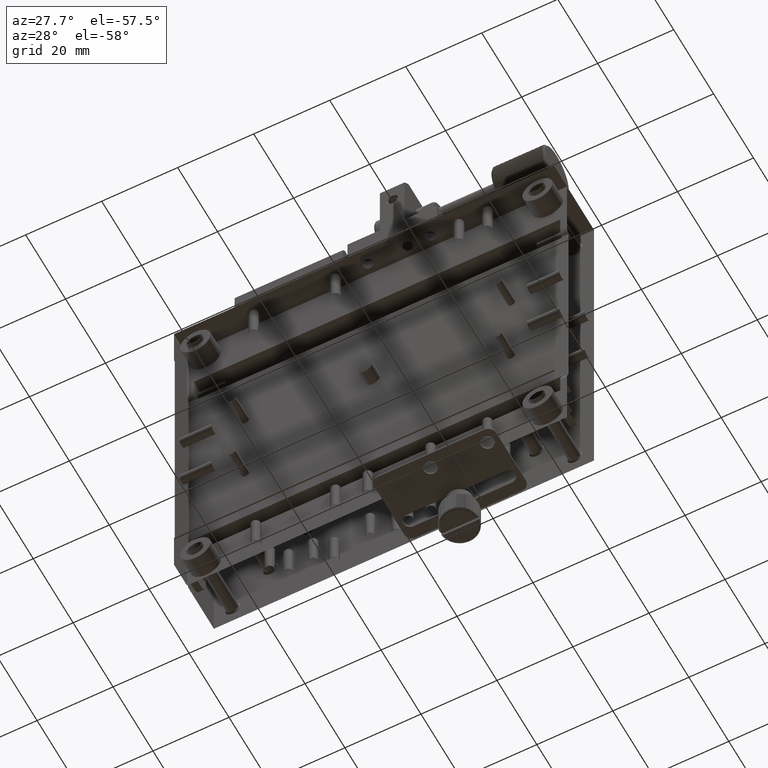
[diagram: clean part render]
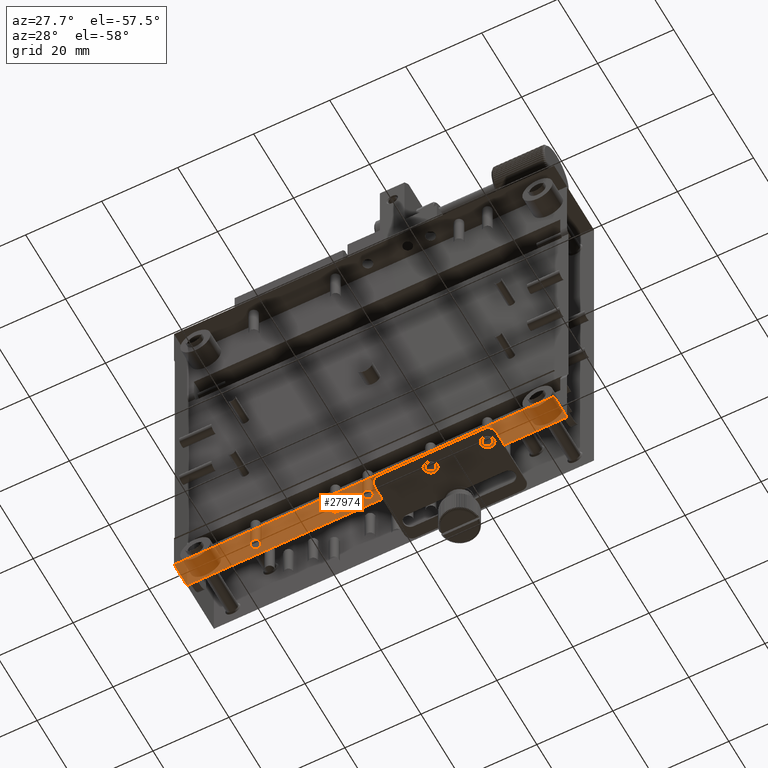
[diagram: same view with one face highlighted and labeled with its STEP entity id]
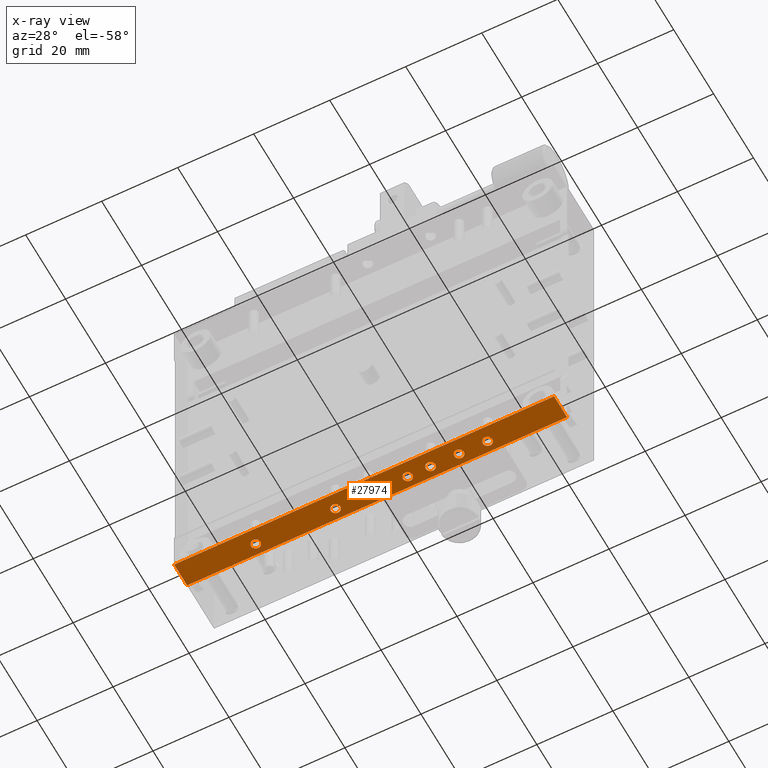
[diagram: x-ray of the same camera — body ghosted, the highlighted face saturated]
A machine part, auxiliary view. The second image highlights one B-rep face of the part: STEP entity #27974.
The next image is the same camera in x-ray: the body ghosted, the highlighted face saturated — about 0% of this face is hidden behind the body in this view.
In plain terms, the highlighted planar face has unit normal (0, 0, 1).
Its self-contained STEP definition (entity closure, byte-faithful):
#18 = CARTESIAN_POINT ( 'NONE',  ( 23.80110581196590758, -12.13680004577959437, -49.99998750000001024 ) ) ;
#25 = CARTESIAN_POINT ( 'NONE',  ( 37.13044967000821828, -9.783873906736351600, -49.99998750000001735 ) ) ;
#108 = B_SPLINE_CURVE_WITH_KNOTS ( 'NONE', 3,
 ( #2671, #6938, #24360, #11356, #8785, #17572, #15727, #554, #9215, #26198, #26620, #2815, #15173, #692, #17855, #6789, #22236, #9351, #15449, #23800, #13042, #17431, #26056, #5082, #1239, #10056, #7355, #5348, #18129, #27179, #3517, #7215, #14034, #22648 ),
 .UNSPECIFIED., .F., .F.,
 ( 4, 1, 1, 2, 2, 2, 1, 1, 2, 2, 2, 1, 1, 2, 2, 2, 1, 1, 2, 2, 4 ),
 ( 0.000000000000000000, 0.06249999999999966693, 0.09375000000000019429, 0.1093749999999994033, 0.1249999999999986122, 0.2499999999999918399, 0.3124999999999880096, 0.3437499999999850120, 0.3593749999999846789, 0.3749999999999842903, 0.4999999999999727995, 0.5624999999999684697, 0.5937499999999663602, 0.6093749999999665823, 0.6249999999999668043, 0.7499999999999737987, 0.8124999999999785727, 0.8437499999999812372, 0.8593749999999833467, 0.8749999999999854561, 1.000000000000000000 ),
 .UNSPECIFIED. ) ;
#138 = DIRECTION ( 'NONE',  ( 1.000000000000000000, 0.000000000000000000, -0.000000000000000000 ) ) ;
#169 = CARTESIAN_POINT ( 'NONE',  ( 35.61189463976847236, -10.60523917224148605, -49.99998750000001024 ) ) ;
#189 = CARTESIAN_POINT ( 'NONE',  ( 45.06313994290746905, -9.985328543234766485, -49.99998750000001024 ) ) ;
#196 = B_SPLINE_CURVE_WITH_KNOTS ( 'NONE', 3,
 ( #8909, #2372, #19971, #6632, #11064, #19691, #10773, #19829, #260, #17557, #26183, #9058, #26331, #6925, #15581, #24214, #23022, #25012, #16636, #3605, #12264, #5859, #22748, #10281, #1470, #12403, #20902, #14535, #3744, #5585, #10147, #16366, #18355, #4930 ),
 .UNSPECIFIED., .F., .F.,
 ( 4, 1, 1, 2, 2, 2, 1, 1, 2, 2, 2, 1, 1, 2, 2, 2, 1, 1, 2, 2, 4 ),
 ( 0.000000000000000000, 0.06249999999999918121, 0.09374999999999945877, 0.1093750000000006523, 0.1250000000000018319, 0.2500000000000047740, 0.3125000000000066613, 0.3437500000000069389, 0.3593750000000067724, 0.3750000000000066058, 0.5000000000000098810, 0.5625000000000115463, 0.5937500000000123235, 0.6093750000000113243, 0.6250000000000104361, 0.7500000000000081046, 0.8125000000000056621, 0.8437500000000031086, 0.8593750000000031086, 0.8750000000000029976, 1.000000000000000000 ),
 .UNSPECIFIED. ) ;
#206 = CARTESIAN_POINT ( 'NONE',  ( -17.46094123574658852, -11.99657140997424420, -49.99998749999999603 ) ) ;
#236 = CARTESIAN_POINT ( 'NONE',  ( 45.47750505977074198, -11.41399117310347222, -49.99998750000002445 ) ) ;
#260 = CARTESIAN_POINT ( 'NONE',  ( 22.29547792020217045, -10.22890938728121490, -49.99998749999999603 ) ) ;
#375 = CARTESIAN_POINT ( 'NONE',  ( 3.861002237255513947, -12.16110202753867497, -49.99998750000000314 ) ) ;
#413 = FACE_BOUND ( 'NONE', #11491, .T. ) ;
#554 = CARTESIAN_POINT ( 'NONE',  ( -17.79780262588701945, -10.37066142462020935, -49.99998750000001024 ) ) ;
#634 = CARTESIAN_POINT ( 'NONE',  ( 30.52184447902167008, -10.67844600469130434, -49.99998750000003156 ) ) ;
#692 = CARTESIAN_POINT ( 'NONE',  ( -17.19890710480779816, -9.845099907426099861, -49.99998750000002445 ) ) ;
#786 = CARTESIAN_POINT ( 'NONE',  ( 4.840079020605724480, -12.11905260172767562, -49.99998749999999603 ) ) ;
#903 = CARTESIAN_POINT ( 'NONE',  ( 37.62411385161705368, -11.93575489666580047, -49.99998750000001735 ) ) ;
#963 = EDGE_CURVE ( 'NONE', #18993, #1436, #12840, .T. ) ;
#1042 = CARTESIAN_POINT ( 'NONE',  ( 30.42920197870361676, -10.45197030957609030, -49.99998750000000314 ) ) ;
#1044 = CARTESIAN_POINT ( 'NONE',  ( 36.03905876425340438, -11.99657140997451421, -49.99998750000001024 ) ) ;
#1106 = EDGE_CURVE ( 'NONE', #26775, #19376, #9123, .T. ) ;
#1147 = CARTESIAN_POINT ( 'NONE',  ( 5.456021011267694121, -10.51237978777043480, -49.99998750000002445 ) ) ;
#1176 = CARTESIAN_POINT ( 'NONE',  ( 28.70457473639070400, -9.890830654454122239, -49.99998749999999603 ) ) ;
#1239 = CARTESIAN_POINT ( 'NONE',  ( -15.93686005709710507, -9.985328543228831677, -49.99998750000001024 ) ) ;
#1287 = CARTESIAN_POINT ( 'NONE',  ( 3.478084855541966558, -10.04614505653960954, -49.99998750000001024 ) ) ;
#1293 = VERTEX_POINT ( 'NONE', #20693 ) ;
#1323 = CARTESIAN_POINT ( 'NONE',  ( 36.72179724095674658, -12.24098362755351843, -49.99998750000000314 ) ) ;
#1432 = CARTESIAN_POINT ( 'NONE',  ( 4.630449670008154328, -9.783873906736346271, -49.99998750000000314 ) ) ;
#1436 = VERTEX_POINT ( 'NONE', #4317 ) ;
#1444 = CARTESIAN_POINT ( 'NONE',  ( 44.89762397076953704, -12.09106929875040315, -49.99998749999998893 ) ) ;
#1470 = CARTESIAN_POINT ( 'NONE',  ( 24.06313994290289671, -9.985328543228828124, -49.99998749999999603 ) ) ;
#1498 = CARTESIAN_POINT ( 'NONE',  ( 12.95970357882189639, -12.24088267470168745, -49.99998749999999603 ) ) ;
#1572 = CARTESIAN_POINT ( 'NONE',  ( 24.55109935357898365, -11.07033719248107495, -49.99998750000002445 ) ) ;
#1708 = CARTESIAN_POINT ( 'NONE',  ( 22.15524928440267516, -11.49095643499012098, -49.99998750000000314 ) ) ;
#1714 = CARTESIAN_POINT ( 'NONE',  ( 44.80110581196548480, -12.13680004577991056, -49.99998750000001735 ) ) ;
#1741 = CARTESIAN_POINT ( 'NONE',  ( 43.05109935357901918, -10.91156276072305431, -49.99998750000001735 ) ) ;
#1850 = CARTESIAN_POINT ( 'NONE',  ( 22.97174903715109195, -12.19802604646952737, -49.99998750000001024 ) ) ;
#1903 = CARTESIAN_POINT ( 'NONE',  ( 13.52549148159294923, -12.01623996683035145, -49.99998750000000314 ) ) ;
#1916 = CARTESIAN_POINT ( 'NONE',  ( 29.10480585812173970, -12.23003828780748670, -49.99998750000002445 ) ) ;
#1918 = EDGE_CURVE ( 'NONE', #4929, #4453, #8364, .T. ) ;
#1949 = ORIENTED_EDGE ( 'NONE', *, *, #1918, .T. ) ;
#1984 = CARTESIAN_POINT ( 'NONE',  ( 22.05109935357902629, -10.99094997660293593, -49.99998750000001024 ) ) ;
#2118 = CARTESIAN_POINT ( 'NONE',  ( 24.49030406738954824, -11.37666078096188471, -49.99998750000002445 ) ) ;
#2164 = CARTESIAN_POINT ( 'NONE',  ( -17.13899776274460507, -12.16110202753863412, -49.99998750000001735 ) ) ;
#2194 = CARTESIAN_POINT ( 'NONE',  ( 13.94694942275570781, -10.49094351821619675, -49.99998750000000314 ) ) ;
#2338 = CARTESIAN_POINT ( 'NONE',  ( 28.15524928440245844, -11.49095643498989716, -49.99998750000002445 ) ) ;
#2345 = CARTESIAN_POINT ( 'NONE',  ( 45.49030406738955890, -11.37666078095949551, -49.99998750000001024 ) ) ;
#2372 = CARTESIAN_POINT ( 'NONE',  ( 22.05109935357902984, -10.91156276072250897, -49.99998750000001024 ) ) ;
#2389 = CARTESIAN_POINT ( 'NONE',  ( 30.12411385161846411, -11.93575489666496203, -49.99998750000002445 ) ) ;
#2414 = CARTESIAN_POINT ( 'NONE',  ( 36.64249512833382738, -9.741017278504184418, -49.99998750000002445 ) ) ;
#2485 = CARTESIAN_POINT ( 'NONE',  ( 11.70219737411456862, -10.37066142461695684, -49.99998750000001024 ) ) ;
#2537 = EDGE_CURVE ( 'NONE', #10164, #27609, #196, .T. ) ;
#2596 = CARTESIAN_POINT ( 'NONE',  ( -16.38622613163613195, -12.21162750417076204, -49.99998750000000314 ) ) ;
#2623 = CARTESIAN_POINT ( 'NONE',  ( 12.88040146620153692, -9.740916325652346330, -49.99998750000001735 ) ) ;
#2669 = DIRECTION ( 'NONE',  ( 0.000000000000000000, 0.000000000000000000, 1.000000000000000000 ) ) ;
#2671 = CARTESIAN_POINT ( 'NONE',  ( -17.94890064642098082, -10.99094997660293593, -49.99998750000001024 ) ) ;
#2751 = CARTESIAN_POINT ( 'NONE',  ( 30.40121867572527137, -10.39442535941101298, -49.99998750000002445 ) ) ;
#2773 = CARTESIAN_POINT ( 'NONE',  ( 3.356294433516384679, -11.81396447464109478, -49.99998750000001735 ) ) ;
#2796 = ORIENTED_EDGE ( 'NONE', *, *, #15380, .T. ) ;
#2803 = EDGE_CURVE ( 'NONE', #1436, #18993, #21473, .T. ) ;
#2815 = CARTESIAN_POINT ( 'NONE',  ( -17.29542526361245436, -9.890830654455825766, -49.99998750000000314 ) ) ;
#2929 = CARTESIAN_POINT ( 'NONE',  ( 14.05109935357898365, -10.99094997660293593, -49.99998750000001024 ) ) ;
#3023 = EDGE_CURVE ( 'NONE', #27609, #10164, #7276, .T. ) ;
#3032 = CARTESIAN_POINT ( 'NONE',  ( 36.95970357882351465, -12.24088267470168923, -49.99998750000001024 ) ) ;
#3052 = CARTESIAN_POINT ( 'NONE',  ( 4.613773868363875152, -12.21162750417076559, -49.99998750000001735 ) ) ;
#3133 = CARTESIAN_POINT ( 'NONE',  ( 5.326389343806560817, -10.26655784858987097, -49.99998750000000314 ) ) ;
#3168 = CARTESIAN_POINT ( 'NONE',  ( 29.63044967000797314, -9.783873906736346271, -49.99998750000001024 ) ) ;
#3343 = VECTOR ( 'NONE', #16173, 1000.000000000000000 ) ;
#3451 = CARTESIAN_POINT ( 'NONE',  ( 37.97125140451450420, -11.43104709292669696, -49.99998750000001024 ) ) ;
#3517 = CARTESIAN_POINT ( 'NONE',  ( -15.54397898873231654, -10.51237978777034776, -49.99998750000001024 ) ) ;
#3578 = CARTESIAN_POINT ( 'NONE',  ( 43.20098003143498033, -11.58747459379693368, -49.99998750000003156 ) ) ;
#3599 = CARTESIAN_POINT ( 'NONE',  ( 35.67299672845455660, -11.52992964363005157, -49.99998750000002445 ) ) ;
#3605 = CARTESIAN_POINT ( 'NONE',  ( 23.63044967000833196, -9.783873906736349824, -49.99998750000001735 ) ) ;
#3653 = VERTEX_POINT ( 'NONE', #11613 ) ;
#3663 = CARTESIAN_POINT ( 'NONE',  ( 35.55109935357903339, -10.99094997660293593, -49.99998750000001024 ) ) ;
#3718 = CARTESIAN_POINT ( 'NONE',  ( 43.14617769589030161, -11.46952016543471409, -49.99998750000001735 ) ) ;
#3744 = CARTESIAN_POINT ( 'NONE',  ( 24.42920197870419230, -10.45197030957688789, -49.99998750000003156 ) ) ;
#3854 = CARTESIAN_POINT ( 'NONE',  ( 44.45970357882456625, -12.24088267470169100, -49.99998750000000314 ) ) ;
#3857 = EDGE_CURVE ( 'NONE', #1293, #19557, #4494, .T. ) ;
#3880 = CARTESIAN_POINT ( 'NONE',  ( 43.82255048260564934, -9.836019869179889241, -49.99998749999999603 ) ) ;
#3904 = CARTESIAN_POINT ( 'NONE',  ( 11.55109935357903339, -11.15008115286311074, -49.99998750000002445 ) ) ;
#3981 = CARTESIAN_POINT ( 'NONE',  ( 22.14617769589031582, -11.46952016543518837, -49.99998750000001735 ) ) ;
#3987 = CARTESIAN_POINT ( 'NONE',  ( 37.90121867572417358, -10.39442535940935919, -49.99998750000003156 ) ) ;
#4054 = CARTESIAN_POINT ( 'NONE',  ( 28.08035422813634696, -11.30345394851455332, -49.99998750000000314 ) ) ;
#4124 = CARTESIAN_POINT ( 'NONE',  ( 23.89762397077078049, -12.09106929874953984, -49.99998750000001024 ) ) ;
#4173 = CARTESIAN_POINT ( 'NONE',  ( -16.89519414187780910, -12.23003828780748492, -49.99998750000001735 ) ) ;
#4197 = CARTESIAN_POINT ( 'NONE',  ( 28.05109935357902629, -11.15008115286377510, -49.99998750000001735 ) ) ;
#4201 = CARTESIAN_POINT ( 'NONE',  ( 13.56313994290357172, -9.985328543229773146, -49.99998749999999603 ) ) ;
#4317 = CARTESIAN_POINT ( 'NONE',  ( 43.05109935357901918, -10.99094997660293593, -49.99998750000001024 ) ) ;
#4332 = CARTESIAN_POINT ( 'NONE',  ( 12.20457473638949253, -9.890830654454990878, -49.99998750000001735 ) ) ;
#4453 = VERTEX_POINT ( 'NONE', #27018 ) ;
#4469 = CARTESIAN_POINT ( 'NONE',  ( 11.63094730264304388, -10.55085286027981084, -49.99998750000001735 ) ) ;
#4494 = B_SPLINE_CURVE_WITH_KNOTS ( 'NONE', 3,
 ( #26153, #26445, #9174, #13422, #8743, #21910, #4469, #2485, #19796, #7033, #17671, #4332, #6745, #26016, #26297, #21629, #15408, #2623, #17388, #6598, #6895, #6470, #15264, #10746, #4201, #19379, #27999, #24042, #4618, #2194, #8607, #17247, #15553, #24185 ),
 .UNSPECIFIED., .F., .F.,
 ( 4, 1, 1, 2, 2, 2, 1, 1, 2, 2, 2, 1, 1, 2, 2, 2, 1, 1, 2, 2, 4 ),
 ( 0.000000000000000000, 0.06249999999999591993, 0.09374999999999443501, 0.1093749999999936856, 0.1249999999999929501, 0.2499999999999888978, 0.3124999999999877320, 0.3437499999999872324, 0.3593749999999875100, 0.3749999999999878431, 0.4999999999999928946, 0.5624999999999946709, 0.5937499999999950040, 0.6093749999999944489, 0.6249999999999937828, 0.7499999999999978906, 0.8124999999999994449, 0.8437500000000011102, 0.8593750000000014433, 0.8750000000000016653, 1.000000000000000000 ),
 .UNSPECIFIED. ) ;
#4501 = EDGE_LOOP ( 'NONE', ( #12811, #23852, #13181, #23106 ) ) ;
#4545 = CARTESIAN_POINT ( 'NONE',  ( 36.99739284903758829, -9.751861665398392276, -49.99998750000001735 ) ) ;
#4618 = CARTESIAN_POINT ( 'NONE',  ( 13.92920197870390808, -10.45197030957648998, -49.99998750000002445 ) ) ;
#4666 = CARTESIAN_POINT ( 'NONE',  ( 29.89762397077198841, -12.09106929874905489, -49.99998750000001024 ) ) ;
#4716 = CARTESIAN_POINT ( 'NONE',  ( 44.49739284903640169, -9.751861665398386947, -49.99998750000001024 ) ) ;
#4734 = CARTESIAN_POINT ( 'NONE',  ( -17.31918919840316207, -12.08985195606951812, -49.99998750000000314 ) ) ;
#4800 = PLANE ( 'NONE',  #7190 ) ;
#4870 = DIRECTION ( 'NONE',  ( -1.000000000000000000, 0.000000000000000000, -0.000000000000000000 ) ) ;
#4906 = CARTESIAN_POINT ( 'NONE',  ( 5.551099353578983653, -11.07033719248107317, -49.99998750000001024 ) ) ;
#4929 = VERTEX_POINT ( 'NONE', #5340 ) ;
#4930 = CARTESIAN_POINT ( 'NONE',  ( 24.55109935357898010, -10.99094997660293593, -49.99998750000001024 ) ) ;
#5043 = CARTESIAN_POINT ( 'NONE',  ( 3.680810801595931991, -12.08985195606915752, -49.99998750000001024 ) ) ;
#5082 = CARTESIAN_POINT ( 'NONE',  ( -16.07861209443547068, -9.892047997138618598, -49.99998750000000314 ) ) ;
#5129 = CARTESIAN_POINT ( 'NONE',  ( 5.063139942903570834, -9.985328543229773146, -49.99998750000001735 ) ) ;
#5136 = CARTESIAN_POINT ( 'NONE',  ( 45.52184447902165942, -10.67844600468751892, -49.99998750000001735 ) ) ;
#5139 = EDGE_LOOP ( 'NONE', ( #24108, #12125 ) ) ;
#5181 = CARTESIAN_POINT ( 'NONE',  ( 3.915460355092772904, -12.18018308340305822, -49.99998750000000314 ) ) ;
#5255 = CARTESIAN_POINT ( 'NONE',  ( 4.921387905563893383, -9.892047997138243787, -49.99998750000001735 ) ) ;
#5274 = CARTESIAN_POINT ( 'NONE',  ( 13.80109935357899964, -14.79094997660293132, -49.99998750000001024 ) ) ;
#5291 = CARTESIAN_POINT ( 'NONE',  ( 35.85629443351704992, -11.81396447464189414, -49.99998750000001735 ) ) ;
#5310 = CARTESIAN_POINT ( 'NONE',  ( 4.801105811965896031, -12.13680004577954819, -49.99998750000001735 ) ) ;
#5340 = CARTESIAN_POINT ( 'NONE',  ( 3.051099353579028950, -10.99094997660293593, -49.99998750000001024 ) ) ;
#5348 = CARTESIAN_POINT ( 'NONE',  ( -15.59878132427385644, -10.39442535941225465, -49.99998750000000314 ) ) ;
#5431 = CARTESIAN_POINT ( 'NONE',  ( 29.74119646990234500, -9.820797925667054784, -49.99998750000001024 ) ) ;
#5541 = CARTESIAN_POINT ( 'NONE',  ( 5.521844479021663865, -10.67844600469197580, -49.99998750000001735 ) ) ;
#5554 = CARTESIAN_POINT ( 'NONE',  ( 44.84007902060496775, -12.11905260172832399, -49.99998750000001735 ) ) ;
#5585 = CARTESIAN_POINT ( 'NONE',  ( 24.44694942275585703, -10.49094351821641347, -49.99998750000000314 ) ) ;
#5691 = CARTESIAN_POINT ( 'NONE',  ( 44.10480585812008769, -12.23003828780748314, -49.99998750000000314 ) ) ;
#5710 = CARTESIAN_POINT ( 'NONE',  ( 36.37809804922832768, -12.16737145667775088, -49.99998750000000314 ) ) ;
#5859 = CARTESIAN_POINT ( 'NONE',  ( 23.72410065792985989, -9.814528496528119206, -49.99998749999999603 ) ) ;
#5884 = CARTESIAN_POINT ( 'NONE',  ( 12.72179724095755660, -12.24098362755352198, -49.99998750000000314 ) ) ;
#5934 = ORIENTED_EDGE ( 'NONE', *, *, #11384, .T. ) ;
#5971 = CARTESIAN_POINT ( 'NONE',  ( 22.91546035509277246, -12.18018308340306177, -49.99998750000001735 ) ) ;
#6006 = CARTESIAN_POINT ( 'NONE',  ( 43.12469364738728927, -10.56790878010025381, -49.99998750000001735 ) ) ;
#6039 = EDGE_LOOP ( 'NONE', ( #9440, #18916 ) ) ;
#6047 = CARTESIAN_POINT ( 'NONE',  ( 28.97174903715074734, -12.19802604646952560, -49.99998750000000314 ) ) ;
#6110 = CARTESIAN_POINT ( 'NONE',  ( 23.61377386836333159, -12.21162750417076559, -49.99998750000001735 ) ) ;
#6116 = CARTESIAN_POINT ( 'NONE',  ( 37.18673835206609368, -9.801716869802824306, -49.99998750000001735 ) ) ;
#6137 = CARTESIAN_POINT ( 'NONE',  ( 44.38040146620091519, -9.740916325652341001, -49.99998749999998893 ) ) ;
#6163 = CARTESIAN_POINT ( 'NONE',  ( 11.77580936335145090, -11.71534210461600090, -49.99998750000001735 ) ) ;
#6176 = CARTESIAN_POINT ( 'NONE',  ( 29.80110581196634101, -12.13680004577942384, -49.99998750000001735 ) ) ;
#6308 = CARTESIAN_POINT ( 'NONE',  ( 13.30110581196597863, -12.13680004577959792, -49.99998750000001735 ) ) ;
#6321 = CARTESIAN_POINT ( 'NONE',  ( 28.53905876425378452, -11.99657140997516436, -49.99998750000001735 ) ) ;
#6399 = CARTESIAN_POINT ( 'NONE',  ( 35.97808485554234181, -10.04614505653952250, -49.99998750000000314 ) ) ;
#6441 = CARTESIAN_POINT ( 'NONE',  ( -17.79901996856703761, -11.58747459379545575, -49.99998750000000314 ) ) ;
#6470 = CARTESIAN_POINT ( 'NONE',  ( 13.22410065792980660, -9.814528496528120982, -49.99998750000001024 ) ) ;
#6539 = CARTESIAN_POINT ( 'NONE',  ( 38.05109935357898365, -10.83181880034047140, -49.99998750000001735 ) ) ;
#6558 = CARTESIAN_POINT ( 'NONE',  ( 43.70457473639023505, -9.890830654455136539, -49.99998750000002445 ) ) ;
#6574 = CARTESIAN_POINT ( 'NONE',  ( -16.77820275904258196, -12.24098362755352198, -49.99998750000001024 ) ) ;
#6598 = CARTESIAN_POINT ( 'NONE',  ( 13.13044967000815610, -9.783873906736349824, -49.99998750000000314 ) ) ;
#6600 = CARTESIAN_POINT ( 'NONE',  ( 45.54012877561997641, -11.18739240275375657, -49.99998749999999603 ) ) ;
#6632 = CARTESIAN_POINT ( 'NONE',  ( 22.09406745058509358, -10.66148796214779537, -49.99998749999998893 ) ) ;
#6643 = FACE_BOUND ( 'NONE', #16740, .T. ) ;
#6717 = CARTESIAN_POINT ( 'NONE',  ( -16.19889418803422032, -12.13680004577958904, -49.99998750000001024 ) ) ;
#6745 = CARTESIAN_POINT ( 'NONE',  ( 12.26211968655371010, -9.862847351477242341, -49.99998750000000314 ) ) ;
#6747 = CARTESIAN_POINT ( 'NONE',  ( 45.30672078695332772, -11.75299056592634805, -49.99998750000001735 ) ) ;
#6776 = DIRECTION ( 'NONE',  ( 0.000000000000000000, 1.000000000000000000, 0.000000000000000000 ) ) ;
#6789 = CARTESIAN_POINT ( 'NONE',  ( -17.01157516120398938, -9.770272449035109830, -49.99998750000001735 ) ) ;
#6895 = CARTESIAN_POINT ( 'NONE',  ( 13.18673835206604217, -9.801716869802817200, -49.99998750000002445 ) ) ;
#6900 = CARTESIAN_POINT ( 'NONE',  ( 3.051099353579028950, -11.15008115286242862, -49.99998750000001735 ) ) ;
#6925 = CARTESIAN_POINT ( 'NONE',  ( 22.80109289519312554, -9.845099907425574060, -49.99998750000002445 ) ) ;
#6938 = CARTESIAN_POINT ( 'NONE',  ( -17.94890064642098437, -10.91156276072453224, -49.99998750000001735 ) ) ;
#6971 = EDGE_CURVE ( 'NONE', #22844, #11757, #15434, .T. ) ;
#7033 = CARTESIAN_POINT ( 'NONE',  ( 11.97808485554219793, -10.04614505653952250, -49.99998750000003156 ) ) ;
#7076 = CARTESIAN_POINT ( 'NONE',  ( 30.47125140451465342, -11.43104709292668453, -49.99998750000000314 ) ) ;
#7156 = CARTESIAN_POINT ( 'NONE',  ( 28.29547792020125030, -10.22890938728157906, -49.99998750000001024 ) ) ;
#7190 = AXIS2_PLACEMENT_3D ( 'NONE', #23936, #2669, #138 ) ;
#7215 = CARTESIAN_POINT ( 'NONE',  ( -15.47815552097834946, -10.67844600469265437, -49.99998750000002445 ) ) ;
#7276 = B_SPLINE_CURVE_WITH_KNOTS ( 'NONE', 3,
 ( #14773, #1572, #16892, #12929, #2118, #8392, #10809, #19442, #17317, #25533, #18881, #4124, #27514, #18, #16749, #6110, #10536, #25945, #25394, #1850, #5971, #14639, #27794, #23275, #23403, #8670, #23545, #12501, #21142, #1708, #3981, #12790, #12645, #1984 ),
 .UNSPECIFIED., .F., .F.,
 ( 4, 1, 1, 2, 2, 2, 1, 1, 2, 2, 2, 1, 1, 2, 2, 2, 1, 1, 2, 2, 4 ),
 ( 0.000000000000000000, 0.06249999999999648892, 0.09374999999999542033, 0.1093749999999946154, 0.1249999999999938105, 0.2499999999999868994, 0.3124999999999821254, 0.3437499999999790168, 0.3593749999999785727, 0.3749999999999781841, 0.4999999999999701905, 0.5624999999999675815, 0.5937499999999663602, 0.6093749999999670264, 0.6249999999999676925, 0.7499999999999795719, 0.8124999999999860112, 0.8437499999999898970, 0.8593749999999912292, 0.8749999999999925615, 1.000000000000000000 ),
 .UNSPECIFIED. ) ;
#7297 = CARTESIAN_POINT ( 'NONE',  ( 29.92138790556324679, -9.892047997137872528, -49.99998750000001735 ) ) ;
#7299 = CARTESIAN_POINT ( 'NONE',  ( 37.34007902060533723, -12.11905260172815879, -49.99998749999999603 ) ) ;
#7341 = VECTOR ( 'NONE', #16036, 1000.000000000000000 ) ;
#7355 = CARTESIAN_POINT ( 'NONE',  ( -15.67361065619287253, -10.26655784859069520, -49.99998750000002445 ) ) ;
#7436 = CARTESIAN_POINT ( 'NONE',  ( 28.80109289519334936, -9.845099907425488794, -49.99998750000002445 ) ) ;
#7545 = CARTESIAN_POINT ( 'NONE',  ( 43.35629443351859891, -11.81396447464316424, -49.99998750000002445 ) ) ;
#7568 = CARTESIAN_POINT ( 'NONE',  ( 28.06206993153801221, -10.79450755044551435, -49.99998749999999603 ) ) ;
#7673 = CARTESIAN_POINT ( 'NONE',  ( 3.111894639768462589, -10.60523917224319135, -49.99998750000001735 ) ) ;
#7707 = CARTESIAN_POINT ( 'NONE',  ( 28.98842483879762710, -9.770272449035104501, -49.99998750000000314 ) ) ;
#8024 = CARTESIAN_POINT ( 'NONE',  ( 11.55109935357902984, -10.99094997660293593, -49.99998750000001024 ) ) ;
#8168 = CARTESIAN_POINT ( 'NONE',  ( 11.65524928440230745, -11.49095643498967512, -49.99998750000002445 ) ) ;
#8259 = CARTESIAN_POINT ( 'NONE',  ( 37.74590427364029921, -10.16793547856303270, -49.99998750000001735 ) ) ;
#8364 = B_SPLINE_CURVE_WITH_KNOTS ( 'NONE', 3,
 ( #19891, #9125, #9530, #24553, #7673, #22555, #9672, #20434, #16187, #1287, #22701, #9958, #15916, #14076, #18596, #27087, #20859, #22418, #18317, #1432, #13933, #22846, #25109, #5255, #5129, #18180, #3133, #16057, #27230, #20713, #1147, #5541, #26946, #20574 ),
 .UNSPECIFIED., .F., .F.,
 ( 4, 1, 1, 2, 2, 2, 1, 1, 2, 2, 2, 1, 1, 2, 2, 2, 1, 1, 2, 2, 4 ),
 ( 0.000000000000000000, 0.06250000000000269229, 0.09375000000000473233, 0.1093750000000058009, 0.1250000000000068556, 0.2500000000000124345, 0.3125000000000152656, 0.3437500000000161537, 0.3593750000000163203, 0.3750000000000164868, 0.5000000000000160982, 0.5625000000000156541, 0.5937500000000157652, 0.6093750000000157652, 0.6250000000000157652, 0.7500000000000146549, 0.8125000000000135447, 0.8437500000000137668, 0.8593750000000131006, 0.8750000000000124345, 1.000000000000000000 ),
 .UNSPECIFIED. ) ;
#8392 = CARTESIAN_POINT ( 'NONE',  ( 24.47750505977072422, -11.41399117310479916, -49.99998750000001735 ) ) ;
#8436 = CARTESIAN_POINT ( 'NONE',  ( -16.22035177544773177, -12.14588008402597552, -49.99998750000001024 ) ) ;
#8536 = CARTESIAN_POINT ( 'NONE',  ( 37.56313994290592717, -9.985328543233245924, -49.99998750000001735 ) ) ;
#8579 = CARTESIAN_POINT ( 'NONE',  ( -17.08453964490723109, -12.18018308340306000, -49.99998750000001024 ) ) ;
#8607 = CARTESIAN_POINT ( 'NONE',  ( 13.95602101126769590, -10.51237978777042947, -49.99998749999999603 ) ) ;
#8670 = CARTESIAN_POINT ( 'NONE',  ( 22.35629443351733769, -11.81396447464205401, -49.99998750000002445 ) ) ;
#8675 = CARTESIAN_POINT ( 'NONE',  ( 36.30109289519297278, -9.845099907425799657, -49.99998750000000314 ) ) ;
#8743 = CARTESIAN_POINT ( 'NONE',  ( 11.61189463976845815, -10.60523917224347556, -49.99998750000001024 ) ) ;
#8785 = CARTESIAN_POINT ( 'NONE',  ( -17.88810536023155962, -10.60523917224376333, -49.99998750000001024 ) ) ;
#8812 = CARTESIAN_POINT ( 'NONE',  ( 35.59406745058510779, -10.66148796214691252, -49.99998750000001735 ) ) ;
#8835 = CARTESIAN_POINT ( 'NONE',  ( 45.40121867572315750, -10.39442535940835022, -49.99998749999998893 ) ) ;
#8850 = CARTESIAN_POINT ( 'NONE',  ( -15.87588614838274204, -11.93575489666531375, -49.99998750000001024 ) ) ;
#8874 = CARTESIAN_POINT ( 'NONE',  ( 28.27580936335202111, -11.71534210461682513, -49.99998750000001024 ) ) ;
#8881 = CARTESIAN_POINT ( 'NONE',  ( 45.55109935357898365, -10.99094997660293593, -49.99998750000001024 ) ) ;
#8901 = ORIENTED_EDGE ( 'NONE', *, *, #20985, .T. ) ;
#8909 = CARTESIAN_POINT ( 'NONE',  ( 22.05109935357902629, -10.99094997660293593, -49.99998750000001024 ) ) ;
#9000 = CARTESIAN_POINT ( 'NONE',  ( -15.52249494022928111, -11.41399117310479738, -49.99998750000000314 ) ) ;
#9031 = CARTESIAN_POINT ( 'NONE',  ( 3.275809363351187997, -11.71534210461598313, -49.99998750000001735 ) ) ;
#9058 = CARTESIAN_POINT ( 'NONE',  ( 22.70457473639011425, -9.890830654454363824, -49.99998750000001024 ) ) ;
#9071 = FACE_BOUND ( 'NONE', #14270, .T. ) ;
#9123 = B_SPLINE_CURVE_WITH_KNOTS ( 'NONE', 3,
 ( #19175, #12797, #25671, #8812, #169, #19447, #15200, #19309, #21560, #6399, #21427, #23969, #27658, #8675, #21842, #23698, #2414, #10680, #4545, #25, #6116, #14779, #27799, #25538, #8536, #8259, #14921, #3987, #27931, #25813, #17179, #17460, #6539, #26086 ),
 .UNSPECIFIED., .F., .F.,
 ( 4, 1, 1, 2, 2, 2, 1, 1, 2, 2, 2, 1, 1, 2, 2, 2, 1, 1, 2, 2, 4 ),
 ( 0.000000000000000000, 0.06250000000000799361, 0.09375000000001268430, 0.1093750000000142525, 0.1250000000000158207, 0.2500000000000439648, 0.3125000000000580092, 0.3437500000000650591, 0.3593750000000685563, 0.3750000000000720535, 0.5000000000000930367, 0.5625000000001034728, 0.5937500000001086908, 0.6093750000001086908, 0.6250000000001086908, 0.7500000000000770495, 0.8125000000000599520, 0.8437500000000499600, 0.8593750000000455191, 0.8750000000000410783, 1.000000000000000000 ),
 .UNSPECIFIED. ) ;
#9125 = CARTESIAN_POINT ( 'NONE',  ( 3.051099353579028950, -10.91156276072385900, -49.99998750000001735 ) ) ;
#9174 = CARTESIAN_POINT ( 'NONE',  ( 11.56206993153802109, -10.79450755044609700, -49.99998750000000314 ) ) ;
#9178 = CARTESIAN_POINT ( 'NONE',  ( 4.897623970770732527, -12.09106929874940306, -49.99998750000000314 ) ) ;
#9215 = CARTESIAN_POINT ( 'NONE',  ( -17.70452207979394643, -10.22890938727898202, -49.99998750000000314 ) ) ;
#9351 = CARTESIAN_POINT ( 'NONE',  ( -16.61959853379833874, -9.740916325652348107, -49.99998750000000314 ) ) ;
#9402 = CARTESIAN_POINT ( 'NONE',  ( 44.92138790556118266, -9.892047997136637960, -49.99998750000000314 ) ) ;
#9440 = ORIENTED_EDGE ( 'NONE', *, *, #20739, .T. ) ;
#9451 = CARTESIAN_POINT ( 'NONE',  ( 5.540128775619988843, -11.18739240275871616, -49.99998750000001024 ) ) ;
#9530 = CARTESIAN_POINT ( 'NONE',  ( 3.062069931538024647, -10.79450755044550903, -49.99998750000001735 ) ) ;
#9569 = CARTESIAN_POINT ( 'NONE',  ( 30.45602101126769767, -10.51237978777051829, -49.99998750000001735 ) ) ;
#9572 = CARTESIAN_POINT ( 'NONE',  ( 35.64617769589032292, -11.46952016543531805, -49.99998749999999603 ) ) ;
#9589 = CARTESIAN_POINT ( 'NONE',  ( 5.477505059770725993, -11.41399117310479561, -49.99998750000001735 ) ) ;
#9672 = CARTESIAN_POINT ( 'NONE',  ( 3.130947302643006580, -10.55085286027981262, -49.99998750000001735 ) ) ;
#9709 = CARTESIAN_POINT ( 'NONE',  ( 37.90000133304712193, -11.61123852858382932, -49.99998750000000314 ) ) ;
#9846 = B_SPLINE_CURVE_WITH_KNOTS ( 'NONE', 3,
 ( #23736, #17643, #26269, #13111, #15527, #9000, #22020, #21600, #14963, #8850, #11285, #17359, #24158, #6717, #8436, #2596, #25714, #6574, #4173, #15383, #8579, #27841, #2164, #4734, #206, #23595, #10856, #6441, #19768, #21737, #25990, #24011, #13260, #17078 ),
 .UNSPECIFIED., .F., .F.,
 ( 4, 1, 1, 2, 2, 2, 1, 1, 2, 2, 2, 1, 1, 2, 2, 2, 1, 1, 2, 2, 4 ),
 ( 0.000000000000000000, 0.06250000000000756339, 0.09375000000001204592, 0.1093750000000134198, 0.1250000000000147937, 0.2500000000000220934, 0.3125000000000265898, 0.3437500000000274225, 0.3593750000000269784, 0.3750000000000265343, 0.5000000000000135447, 0.5625000000000084377, 0.5937500000000072164, 0.6093750000000053291, 0.6250000000000034417, 0.7499999999999974465, 0.8124999999999945599, 0.8437499999999937828, 0.8593749999999940048, 0.8749999999999942268, 1.000000000000000000 ),
 .UNSPECIFIED. ) ;
#9852 = CARTESIAN_POINT ( 'NONE',  ( 28.11189463976846170, -10.60523917224320023, -49.99998750000002445 ) ) ;
#9958 = CARTESIAN_POINT ( 'NONE',  ( 3.704574736389186551, -9.890830654455106341, -49.99998750000001735 ) ) ;
#9970 = CARTESIAN_POINT ( 'NONE',  ( 44.22179724095622078, -12.24098362755352731, -49.99998750000001024 ) ) ;
#9992 = CARTESIAN_POINT ( 'NONE',  ( 36.47174903715021088, -12.19802604646952027, -49.99998750000000314 ) ) ;
#10004 = ORIENTED_EDGE ( 'NONE', *, *, #2803, .T. ) ;
#10028 = CARTESIAN_POINT ( 'NONE',  ( 12.60480585812243071, -12.23003828780748670, -49.99998750000002445 ) ) ;
#10056 = CARTESIAN_POINT ( 'NONE',  ( -15.75409572635820155, -10.16793547856523539, -49.99998750000002445 ) ) ;
#10119 = CARTESIAN_POINT ( 'NONE',  ( 44.77964822455252403, -12.14588008402598263, -49.99998750000001735 ) ) ;
#10140 = CARTESIAN_POINT ( 'NONE',  ( 37.30110581196566244, -12.13680004577981286, -49.99998749999999603 ) ) ;
#10147 = CARTESIAN_POINT ( 'NONE',  ( 24.45602101126768702, -10.51237978777034421, -49.99998749999999603 ) ) ;
#10164 = VERTEX_POINT ( 'NONE', #23330 ) ;
#10177 = CARTESIAN_POINT ( 'NONE',  ( 13.34007902060587014, -12.11905260172776444, -49.99998750000001735 ) ) ;
#10281 = CARTESIAN_POINT ( 'NONE',  ( 23.92138790556454353, -9.892047997138616822, -49.99998750000001024 ) ) ;
#10307 = CARTESIAN_POINT ( 'NONE',  ( 12.18081080159566021, -12.08985195606916641, -49.99998750000000314 ) ) ;
#10449 = CARTESIAN_POINT ( 'NONE',  ( 13.90000133304539709, -11.61123852858528949, -49.99998750000001735 ) ) ;
#10536 = CARTESIAN_POINT ( 'NONE',  ( 23.45970357882215751, -12.24088267470169100, -49.99998750000002445 ) ) ;
#10592 = CARTESIAN_POINT ( 'NONE',  ( 13.39762397077096345, -12.09106929874954339, -49.99998750000001735 ) ) ;
#10680 = CARTESIAN_POINT ( 'NONE',  ( 36.88040146620159732, -9.740916325652351659, -49.99998750000001735 ) ) ;
#10746 = CARTESIAN_POINT ( 'NONE',  ( 13.42138790556389694, -9.892047997138243787, -49.99998750000000314 ) ) ;
#10773 = CARTESIAN_POINT ( 'NONE',  ( 22.13094730264273835, -10.55085286028011105, -49.99998750000000314 ) ) ;
#10809 = CARTESIAN_POINT ( 'NONE',  ( 24.47125140451474934, -11.43104709292645893, -49.99998750000001024 ) ) ;
#10839 = CARTESIAN_POINT ( 'NONE',  ( 43.20219737411711236, -10.37066142461303286, -49.99998750000001024 ) ) ;
#10856 = CARTESIAN_POINT ( 'NONE',  ( -17.72419063664766270, -11.71534210461762449, -49.99998750000000314 ) ) ;
#10876 = VECTOR ( 'NONE', #4870, 1000.000000000000000 ) ;
#10950 = CARTESIAN_POINT ( 'NONE',  ( 38.05109935357897655, -10.99094997660293593, -49.99998750000001024 ) ) ;
#10989 = CARTESIAN_POINT ( 'NONE',  ( 45.45602101126771544, -10.51237978777099080, -49.99998750000002445 ) ) ;
#11064 = CARTESIAN_POINT ( 'NONE',  ( 22.11189463976845815, -10.60523917224205803, -49.99998750000001735 ) ) ;
#11175 = CARTESIAN_POINT ( 'NONE',  ( 4.104805858122197115, -12.23003828780748492, -49.99998750000001735 ) ) ;
#11285 = CARTESIAN_POINT ( 'NONE',  ( -15.97450851840777375, -12.01623996683032658, -49.99998750000001735 ) ) ;
#11356 = CARTESIAN_POINT ( 'NONE',  ( -17.90593254941492063, -10.66148796215045458, -49.99998750000000314 ) ) ;
#11384 = EDGE_CURVE ( 'NONE', #18963, #12780, #108, .T. ) ;
#11436 = CARTESIAN_POINT ( 'NONE',  ( 30.44694942275555505, -10.49094351821597826, -49.99998750000002445 ) ) ;
#11491 = EDGE_LOOP ( 'NONE', ( #20790, #8901 ) ) ;
#11601 = CARTESIAN_POINT ( 'NONE',  ( 14.00813125657292701, -11.32041199105506912, -49.99998750000001735 ) ) ;
#11613 = CARTESIAN_POINT ( 'NONE',  ( -36.19890064642101635, -14.79094997660293309, -49.99998750000001024 ) ) ;
#11698 = CARTESIAN_POINT ( 'NONE',  ( 35.65524928440255081, -11.49095643499004815, -49.99998750000000314 ) ) ;
#11735 = CARTESIAN_POINT ( 'NONE',  ( 14.04012877561999062, -11.18739240275871616, -49.99998750000001735 ) ) ;
#11757 = VERTEX_POINT ( 'NONE', #23005 ) ;
#11837 = CARTESIAN_POINT ( 'NONE',  ( 28.09406745058509713, -10.66148796214956995, -49.99998750000001024 ) ) ;
#11858 = VECTOR ( 'NONE', #6776, 1000.000000000000000 ) ;
#11979 = CARTESIAN_POINT ( 'NONE',  ( 37.11377386836198866, -12.21162750417076026, -49.99998750000002445 ) ) ;
#12110 = CARTESIAN_POINT ( 'NONE',  ( 37.80672078695239691, -11.75299056592670510, -49.99998749999999603 ) ) ;
#12125 = ORIENTED_EDGE ( 'NONE', *, *, #1106, .T. ) ;
#12236 = CARTESIAN_POINT ( 'NONE',  ( 43.15524928440328267, -11.49095643499064145, -49.99998750000001735 ) ) ;
#12264 = CARTESIAN_POINT ( 'NONE',  ( 23.68673835206613631, -9.801716869802815424, -49.99998750000001024 ) ) ;
#12381 = CARTESIAN_POINT ( 'NONE',  ( 43.05109935357901918, -10.99094997660293593, -49.99998750000001024 ) ) ;
#12403 = CARTESIAN_POINT ( 'NONE',  ( 24.24590427364180556, -10.16793547856523539, -49.99998750000001024 ) ) ;
#12501 = CARTESIAN_POINT ( 'NONE',  ( 22.20098003143334608, -11.58747459379548594, -49.99998750000001024 ) ) ;
#12509 = CARTESIAN_POINT ( 'NONE',  ( 43.53905876425034194, -11.99657140997199178, -49.99998750000001735 ) ) ;
#12534 = CARTESIAN_POINT ( 'NONE',  ( 43.98842483879467125, -9.770272449035104501, -49.99998750000000314 ) ) ;
#12562 = EDGE_CURVE ( 'NONE', #18829, #16072, #21366, .T. ) ;
#12645 = CARTESIAN_POINT ( 'NONE',  ( 22.05109935357902273, -11.15008115286512513, -49.99998750000000314 ) ) ;
#12780 = VERTEX_POINT ( 'NONE', #20211 ) ;
#12790 = CARTESIAN_POINT ( 'NONE',  ( 22.08035422813634696, -11.30345394851590157, -49.99998750000001735 ) ) ;
#12797 = CARTESIAN_POINT ( 'NONE',  ( 35.55109935357904760, -10.91156276072183573, -49.99998750000000314 ) ) ;
#12811 = ORIENTED_EDGE ( 'NONE', *, *, #13499, .F. ) ;
#12840 = B_SPLINE_CURVE_WITH_KNOTS ( 'NONE', 3,
 ( #8881, #26018, #6600, #15266, #2345, #236, #17527, #26156, #6747, #15410, #16480, #1444, #5554, #1714, #10119, #25121, #3854, #9970, #5691, #20588, #22716, #14365, #18468, #27520, #12509, #7545, #22993, #3578, #27383, #12236, #3718, #20871, #25402, #12381 ),
 .UNSPECIFIED., .F., .F.,
 ( 4, 1, 1, 2, 2, 2, 1, 1, 2, 2, 2, 1, 1, 2, 2, 2, 1, 1, 2, 2, 4 ),
 ( 0.000000000000000000, 0.06250000000000580092, 0.09375000000000886791, 0.1093750000000089512, 0.1250000000000090483, 0.2500000000000079381, 0.3125000000000078271, 0.3437500000000081601, 0.3593750000000086042, 0.3750000000000090483, 0.5000000000000048850, 0.5625000000000028866, 0.5937500000000018874, 0.6093750000000013323, 0.6250000000000007772, 0.7500000000000042188, 0.8125000000000036637, 0.8437500000000019984, 0.8593750000000017764, 0.8750000000000015543, 1.000000000000000000 ),
 .UNSPECIFIED. ) ;
#12929 = CARTESIAN_POINT ( 'NONE',  ( 24.50813125657291280, -11.32041199105506912, -49.99998749999999603 ) ) ;
#13042 = CARTESIAN_POINT ( 'NONE',  ( -16.31326164793385303, -9.801716869802813648, -49.99998750000000314 ) ) ;
#13111 = CARTESIAN_POINT ( 'NONE',  ( -15.49186874342708009, -11.32041199105506735, -49.99998750000000314 ) ) ;
#13136 = CARTESIAN_POINT ( 'NONE',  ( 29.77964822455234994, -12.14588008402597907, -49.99998750000003156 ) ) ;
#13181 = ORIENTED_EDGE ( 'NONE', *, *, #6971, .T. ) ;
#13191 = CARTESIAN_POINT ( 'NONE',  ( 30.30672078694960803, -11.75299056592839975, -49.99998750000000314 ) ) ;
#13246 = CARTESIAN_POINT ( 'NONE',  ( 45.55109935357899076, -10.83181880033829891, -49.99998750000002445 ) ) ;
#13260 = CARTESIAN_POINT ( 'NONE',  ( -17.94890064642098082, -11.15008115286378221, -49.99998750000002445 ) ) ;
#13336 = CARTESIAN_POINT ( 'NONE',  ( 30.50813125657291280, -11.32041199105507268, -49.99998750000000314 ) ) ;
#13422 = CARTESIAN_POINT ( 'NONE',  ( 11.59406745058509003, -10.66148796215001049, -49.99998750000001024 ) ) ;
#13425 = CARTESIAN_POINT ( 'NONE',  ( 3.051099353579028950, -10.99094997660293593, -49.99998750000001024 ) ) ;
#13499 = EDGE_CURVE ( 'NONE', #3653, #21727, #15893, .T. ) ;
#13553 = CARTESIAN_POINT ( 'NONE',  ( 29.68673835206592315, -9.801716869802815424, -49.99998749999999603 ) ) ;
#13573 = CARTESIAN_POINT ( 'NONE',  ( 5.471251404514773320, -11.43104709292639853, -49.99998750000000314 ) ) ;
#13669 = CARTESIAN_POINT ( 'NONE',  ( 45.44694942275479832, -10.49094351821502968, -49.99998750000001735 ) ) ;
#13715 = CARTESIAN_POINT ( 'NONE',  ( 3.172996728453984172, -11.52992964362937300, -49.99998750000002445 ) ) ;
#13767 = EDGE_CURVE ( 'NONE', #4453, #4929, #23323, .T. ) ;
#13832 = CARTESIAN_POINT ( 'NONE',  ( 37.27964822455250271, -12.14588008402597197, -49.99998750000001735 ) ) ;
#13849 = CARTESIAN_POINT ( 'NONE',  ( 3.200980031432099082, -11.58747459379422118, -49.99998750000001735 ) ) ;
#13933 = CARTESIAN_POINT ( 'NONE',  ( 4.686738352066039504, -9.801716869802815424, -49.99998750000001735 ) ) ;
#13971 = CARTESIAN_POINT ( 'NONE',  ( 28.20219737411541416, -10.37066142461554996, -49.99998750000001735 ) ) ;
#13973 = CARTESIAN_POINT ( 'NONE',  ( 35.55109935357903339, -10.99094997660293593, -49.99998750000001024 ) ) ;
#13996 = CARTESIAN_POINT ( 'NONE',  ( 4.459703578822166392, -12.24088267470169100, -49.99998750000001024 ) ) ;
#14011 = CARTESIAN_POINT ( 'NONE',  ( 13.97125140451472980, -11.43104709292651400, -49.99998750000000314 ) ) ;
#14034 = CARTESIAN_POINT ( 'NONE',  ( -15.44890064642103056, -10.83181880034342903, -49.99998750000003156 ) ) ;
#14076 = CARTESIAN_POINT ( 'NONE',  ( 3.801092895192796028, -9.845099907425838737, -49.99998750000001024 ) ) ;
#14112 = CARTESIAN_POINT ( 'NONE',  ( 28.13094730264293375, -10.55085286027998492, -49.99998750000000314 ) ) ;
#14253 = CARTESIAN_POINT ( 'NONE',  ( 38.05109935357897655, -11.07033719247972137, -49.99998750000001735 ) ) ;
#14270 = EDGE_LOOP ( 'NONE', ( #27062, #20047 ) ) ;
#14365 = CARTESIAN_POINT ( 'NONE',  ( 43.87809804922811452, -12.16737145667776154, -49.99998750000001735 ) ) ;
#14388 = CARTESIAN_POINT ( 'NONE',  ( 37.52549148159186387, -12.01623996683117923, -49.99998750000001024 ) ) ;
#14535 = CARTESIAN_POINT ( 'NONE',  ( 24.40121867572615599, -10.39442535941225110, -49.99998750000001735 ) ) ;
#14623 = CARTESIAN_POINT ( 'NONE',  ( 13.80109935357899964, -8.290949976602934868, -49.99998750000001024 ) ) ;
#14639 = CARTESIAN_POINT ( 'NONE',  ( 22.87809804922863677, -12.16737145667775266, -49.99998750000002445 ) ) ;
#14672 = CARTESIAN_POINT ( 'NONE',  ( 43.80109289519317883, -9.845099907425845842, -49.99998750000002445 ) ) ;
#14773 = CARTESIAN_POINT ( 'NONE',  ( 24.55109935357898010, -10.99094997660293593, -49.99998750000001024 ) ) ;
#14779 = CARTESIAN_POINT ( 'NONE',  ( 37.22410065792983858, -9.814528496528122758, -49.99998750000001735 ) ) ;
#14847 = CARTESIAN_POINT ( 'NONE',  ( 28.87809804922852663, -12.16737145667775266, -49.99998750000001024 ) ) ;
#14921 = CARTESIAN_POINT ( 'NONE',  ( 37.82638934380447893, -10.26655784858682985, -49.99998750000000314 ) ) ;
#14963 = CARTESIAN_POINT ( 'NONE',  ( -15.69327921304803120, -11.75299056592768565, -49.99998750000001024 ) ) ;
#14983 = CARTESIAN_POINT ( 'NONE',  ( 14.05109935357898365, -10.99094997660293593, -49.99998750000001024 ) ) ;
#15173 = CARTESIAN_POINT ( 'NONE',  ( -17.23788031344755112, -9.862847351477787683, -49.99998750000003156 ) ) ;
#15200 = CARTESIAN_POINT ( 'NONE',  ( 35.63094730264261756, -10.55085286028028690, -49.99998750000001024 ) ) ;
#15264 = CARTESIAN_POINT ( 'NONE',  ( 13.24119646990227039, -9.820797925667005046, -49.99998750000001735 ) ) ;
#15266 = CARTESIAN_POINT ( 'NONE',  ( 45.50813125657292346, -11.32041199105135298, -49.99998750000001024 ) ) ;
#15316 = CARTESIAN_POINT ( 'NONE',  ( 30.49030406738954824, -11.37666078096188826, -49.99998750000001024 ) ) ;
#15380 = EDGE_CURVE ( 'NONE', #12780, #18963, #9846, .T. ) ;
#15383 = CARTESIAN_POINT ( 'NONE',  ( -17.02825096284890449, -12.19802604646952560, -49.99998750000000314 ) ) ;
#15408 = CARTESIAN_POINT ( 'NONE',  ( 12.64249512833394817, -9.741017278504180865, -49.99998750000001735 ) ) ;
#15410 = CARTESIAN_POINT ( 'NONE',  ( 45.12411385161658472, -11.93575489666598699, -49.99998750000000314 ) ) ;
#15434 = LINE ( 'NONE', #20107, #11858 ) ;
#15449 = CARTESIAN_POINT ( 'NONE',  ( -16.50260715096230157, -9.751861665398390500, -49.99998750000001024 ) ) ;
#15456 = CARTESIAN_POINT ( 'NONE',  ( 30.40000133304593888, -11.61123852858390215, -49.99998750000000314 ) ) ;
#15508 = CARTESIAN_POINT ( 'NONE',  ( 45.55109935357898365, -10.99094997660293593, -49.99998750000001024 ) ) ;
#15527 = CARTESIAN_POINT ( 'NONE',  ( -15.50969593261045709, -11.37666078096188649, -49.99998750000000314 ) ) ;
#15553 = CARTESIAN_POINT ( 'NONE',  ( 14.05109935357898898, -10.83181880034275224, -49.99998750000001735 ) ) ;
#15556 = CARTESIAN_POINT ( 'NONE',  ( 3.539058764254745526, -11.99657140997612359, -49.99998750000001735 ) ) ;
#15581 = CARTESIAN_POINT ( 'NONE',  ( 22.82255048260531183, -9.836019869179901676, -49.99998750000001735 ) ) ;
#15727 = CARTESIAN_POINT ( 'NONE',  ( -17.86905269735677138, -10.55085286027940228, -49.99998750000001735 ) ) ;
#15782 = CARTESIAN_POINT ( 'NONE',  ( 45.55109935357898365, -10.99094997660293593, -49.99998750000001024 ) ) ;
#15828 = CARTESIAN_POINT ( 'NONE',  ( 5.551099353578982765, -10.99094997660293593, -49.99998750000001024 ) ) ;
#15893 = LINE ( 'NONE', #26649, #7341 ) ;
#15916 = CARTESIAN_POINT ( 'NONE',  ( 3.762119686553513365, -9.862847351477318725, -49.99998750000001735 ) ) ;
#15923 = CARTESIAN_POINT ( 'NONE',  ( 44.68673835206551814, -9.801716869802810095, -49.99998750000001735 ) ) ;
#15952 = CARTESIAN_POINT ( 'NONE',  ( 30.24590427364114120, -10.16793547856429569, -49.99998750000000314 ) ) ;
#15954 = CARTESIAN_POINT ( 'NONE',  ( 37.99030406738953047, -11.37666078096074429, -49.99998750000001735 ) ) ;
#16020 = EDGE_CURVE ( 'NONE', #11757, #21727, #22686, .T. ) ;
#16036 = DIRECTION ( 'NONE',  ( 0.000000000000000000, 1.000000000000000000, 0.000000000000000000 ) ) ;
#16057 = CARTESIAN_POINT ( 'NONE',  ( 5.401218675725717233, -10.39442535941163115, -49.99998750000000314 ) ) ;
#16072 = VERTEX_POINT ( 'NONE', #18863 ) ;
#16088 = CARTESIAN_POINT ( 'NONE',  ( 36.60480585812102561, -12.23003828780748492, -49.99998750000002445 ) ) ;
#16173 = DIRECTION ( 'NONE',  ( -1.000000000000000000, 0.000000000000000000, -0.000000000000000000 ) ) ;
#16187 = CARTESIAN_POINT ( 'NONE',  ( 3.295477920203580879, -10.22890938728008337, -49.99998750000001024 ) ) ;
#16356 = CARTESIAN_POINT ( 'NONE',  ( 29.14249512833420397, -9.741017278504179089, -49.99998749999998893 ) ) ;
#16366 = CARTESIAN_POINT ( 'NONE',  ( 24.52184447902165942, -10.67844600469265082, -49.99998750000001024 ) ) ;
#16480 = CARTESIAN_POINT ( 'NONE',  ( 45.02549148159106096, -12.01623996683150075, -49.99998750000000314 ) ) ;
#16501 = CARTESIAN_POINT ( 'NONE',  ( 35.77580936335235862, -11.71534210461738823, -49.99998750000001735 ) ) ;
#16636 = CARTESIAN_POINT ( 'NONE',  ( 23.49739284903770198, -9.751861665398386947, -49.99998750000001024 ) ) ;
#16740 = EDGE_LOOP ( 'NONE', ( #21490, #10004 ) ) ;
#16749 = CARTESIAN_POINT ( 'NONE',  ( 23.77964822455233929, -12.14588008402597730, -49.99998750000002445 ) ) ;
#16780 = CARTESIAN_POINT ( 'NONE',  ( 43.09406745058508648, -10.66148796214850947, -49.99998750000001735 ) ) ;
#16808 = CARTESIAN_POINT ( 'NONE',  ( 11.58035422813634874, -11.30345394851388541, -49.99998750000001735 ) ) ;
#16892 = CARTESIAN_POINT ( 'NONE',  ( 24.54012877561999062, -11.18739240275871971, -49.99998750000002445 ) ) ;
#16924 = CARTESIAN_POINT ( 'NONE',  ( 43.47808485554278946, -10.04614505653963619, -49.99998750000002445 ) ) ;
#17078 = CARTESIAN_POINT ( 'NONE',  ( -17.94890064642098082, -10.99094997660293593, -49.99998750000001024 ) ) ;
#17086 = CARTESIAN_POINT ( 'NONE',  ( 13.62411385161768074, -11.93575489666532796, -49.99998750000003156 ) ) ;
#17179 = CARTESIAN_POINT ( 'NONE',  ( 37.95602101126767991, -10.51237978777071902, -49.99998750000000314 ) ) ;
#17203 = CARTESIAN_POINT ( 'NONE',  ( 43.05109935357901918, -10.99094997660293593, -49.99998750000001024 ) ) ;
#17247 = CARTESIAN_POINT ( 'NONE',  ( 14.02184447902165942, -10.67844600469197403, -49.99998750000000314 ) ) ;
#17317 = CARTESIAN_POINT ( 'NONE',  ( 24.30672078695144123, -11.75299056592766966, -49.99998750000001024 ) ) ;
#17359 = CARTESIAN_POINT ( 'NONE',  ( -16.10237602922957478, -12.09106929874952385, -49.99998750000001024 ) ) ;
#17384 = CARTESIAN_POINT ( 'NONE',  ( 28.86100223725556191, -12.16110202753872649, -49.99998750000001735 ) ) ;
#17388 = CARTESIAN_POINT ( 'NONE',  ( 12.99739284903747816, -9.751861665398392276, -49.99998750000001735 ) ) ;
#17431 = CARTESIAN_POINT ( 'NONE',  ( -16.27589934207014011, -9.814528496528120982, -49.99998750000001024 ) ) ;
#17436 = CARTESIAN_POINT ( 'NONE',  ( 30.55109935357898010, -11.07033719248107495, -49.99998750000001735 ) ) ;
#17460 = CARTESIAN_POINT ( 'NONE',  ( 38.02184447902165232, -10.67844600468969141, -49.99998750000003156 ) ) ;
#17527 = CARTESIAN_POINT ( 'NONE',  ( 45.47125140451430525, -11.43104709292684795, -49.99998750000001024 ) ) ;
#17557 = CARTESIAN_POINT ( 'NONE',  ( 22.47808485554266511, -10.04614505653904466, -49.99998750000001024 ) ) ;
#17572 = CARTESIAN_POINT ( 'NONE',  ( -17.87530635261273204, -10.56790878010094659, -49.99998750000001024 ) ) ;
#17643 = CARTESIAN_POINT ( 'NONE',  ( -15.44890064642102345, -11.07033719248107317, -49.99998750000001024 ) ) ;
#17671 = CARTESIAN_POINT ( 'NONE',  ( 12.07670722556831677, -9.965659986373728074, -49.99998750000001735 ) ) ;
#17674 = CARTESIAN_POINT ( 'NONE',  ( 3.146177695890321147, -11.46952016543552588, -49.99998750000001024 ) ) ;
#17712 = FACE_BOUND ( 'NONE', #6039, .T. ) ;
#17772 = CARTESIAN_POINT ( 'NONE',  ( 45.42920197870228094, -10.45197030957438322, -49.99998750000002445 ) ) ;
#17789 = B_SPLINE_CURVE_WITH_KNOTS ( 'NONE', 3,
 ( #25007, #14253, #22876, #20472, #15954, #24585, #3451, #9709, #12110, #903, #14388, #20749, #7299, #10140, #13832, #11979, #3032, #1323, #16088, #9992, #25144, #5710, #27265, #22452, #1044, #5291, #16501, #20607, #3599, #11698, #9572, #18215, #26845, #13973 ),
 .UNSPECIFIED., .F., .F.,
 ( 4, 1, 1, 2, 2, 2, 1, 1, 2, 2, 2, 1, 1, 2, 2, 2, 1, 1, 2, 2, 4 ),
 ( 0.000000000000000000, 0.06250000000000525968, 0.09375000000000720257, 0.1093750000000074107, 0.1250000000000076050, 0.2500000000000147105, 0.3125000000000200950, 0.3437500000000227596, 0.3593750000000238143, 0.3750000000000248135, 0.5000000000000255351, 0.5625000000000258682, 0.5937500000000260902, 0.6093750000000288658, 0.6250000000000316414, 0.7500000000000234257, 0.8125000000000212053, 0.8437500000000182077, 0.8593750000000159872, 0.8750000000000138778, 1.000000000000000000 ),
 .UNSPECIFIED. ) ;
#17820 = CARTESIAN_POINT ( 'NONE',  ( 4.221797240957426034, -12.24098362755352731, -49.99998750000003156 ) ) ;
#17855 = CARTESIAN_POINT ( 'NONE',  ( -17.17744951739451409, -9.836019869179901676, -49.99998750000003866 ) ) ;
#17860 = CARTESIAN_POINT ( 'NONE',  ( 30.55109935357898010, -10.99094997660293593, -49.99998750000001024 ) ) ;
#17928 = CARTESIAN_POINT ( 'NONE',  ( 30.55109935357898010, -10.99094997660293593, -49.99998750000001024 ) ) ;
#18014 = B_SPLINE_CURVE_WITH_KNOTS ( 'NONE', 3,
 ( #18213, #26562, #7568, #11837, #9852, #26843, #14112, #13971, #7156, #25005, #18070, #1176, #18487, #7436, #27121, #7707, #16356, #26703, #20066, #3168, #13553, #18347, #5431, #7297, #20333, #15952, #22174, #2751, #1042, #11436, #9569, #634, #24583, #17928 ),
 .UNSPECIFIED., .F., .F.,
 ( 4, 1, 1, 2, 2, 2, 1, 1, 2, 2, 2, 1, 1, 2, 2, 2, 1, 1, 2, 2, 4 ),
 ( 0.000000000000000000, 0.06250000000000073552, 0.09375000000000041633, 0.1093750000000006523, 0.1250000000000008604, 0.2499999999999982514, 0.3124999999999956146, 0.3437499999999953926, 0.3593749999999955591, 0.3749999999999957256, 0.5000000000000016653, 0.5625000000000033307, 0.5937500000000027756, 0.6093750000000025535, 0.6250000000000022204, 0.7500000000000051070, 0.8125000000000071054, 0.8437500000000082157, 0.8593750000000076605, 0.8750000000000071054, 1.000000000000000000 ),
 .UNSPECIFIED. ) ;
#18070 = CARTESIAN_POINT ( 'NONE',  ( 28.57670722556995457, -9.965659986372575219, -49.99998750000001024 ) ) ;
#18129 = CARTESIAN_POINT ( 'NONE',  ( -15.57079802129583079, -10.45197030957688966, -49.99998750000002445 ) ) ;
#18180 = CARTESIAN_POINT ( 'NONE',  ( 5.245904273641475157, -10.16793547856476110, -49.99998749999999603 ) ) ;
#18213 = CARTESIAN_POINT ( 'NONE',  ( 28.05109935357902273, -10.99094997660293593, -49.99998750000001024 ) ) ;
#18215 = CARTESIAN_POINT ( 'NONE',  ( 35.58035422813636472, -11.30345394851482332, -49.99998750000000314 ) ) ;
#18233 = CARTESIAN_POINT ( 'NONE',  ( 4.779648224552271785, -12.14588008402597374, -49.99998750000001024 ) ) ;
#18317 = CARTESIAN_POINT ( 'NONE',  ( 4.497392849037476381, -9.751861665398388723, -49.99998750000001024 ) ) ;
#18347 = CARTESIAN_POINT ( 'NONE',  ( 29.72410065792973199, -9.814528496528119206, -49.99998750000001735 ) ) ;
#18355 = CARTESIAN_POINT ( 'NONE',  ( 24.55109935357898010, -10.83181880034342548, -49.99998750000002445 ) ) ;
#18468 = CARTESIAN_POINT ( 'NONE',  ( 43.86100223725578218, -12.16110202753891656, -49.99998750000001024 ) ) ;
#18487 = CARTESIAN_POINT ( 'NONE',  ( 28.76211968655449525, -9.862847351476688118, -49.99998750000001024 ) ) ;
#18596 = CARTESIAN_POINT ( 'NONE',  ( 3.822550482605471256, -9.836019869179899899, -49.99998750000001735 ) ) ;
#18807 = CARTESIAN_POINT ( 'NONE',  ( 11.64617769589031937, -11.46952016543543884, -49.99998750000000314 ) ) ;
#18829 = VERTEX_POINT ( 'NONE', #25695 ) ;
#18863 = CARTESIAN_POINT ( 'NONE',  ( 28.05109935357902273, -10.99094997660293593, -49.99998750000001024 ) ) ;
#18881 = CARTESIAN_POINT ( 'NONE',  ( 24.02549148159270942, -12.01623996683034612, -49.99998750000002445 ) ) ;
#18916 = ORIENTED_EDGE ( 'NONE', *, *, #3857, .T. ) ;
#18917 = CARTESIAN_POINT ( 'NONE',  ( 43.13094730264273124, -10.55085286028030467, -49.99998750000002445 ) ) ;
#18963 = VERTEX_POINT ( 'NONE', #23847 ) ;
#18993 = VERTEX_POINT ( 'NONE', #15508 ) ;
#19175 = CARTESIAN_POINT ( 'NONE',  ( 35.55109935357903339, -10.99094997660293593, -49.99998750000001024 ) ) ;
#19225 = CARTESIAN_POINT ( 'NONE',  ( 11.67299672845410541, -11.52992964362938011, -49.99998750000001024 ) ) ;
#19238 = CARTESIAN_POINT ( 'NONE',  ( 28.35629443351685808, -11.81396447464157617, -49.99998750000001024 ) ) ;
#19309 = CARTESIAN_POINT ( 'NONE',  ( 35.70219737411812133, -10.37066142461313767, -49.99998750000000314 ) ) ;
#19376 = VERTEX_POINT ( 'NONE', #10950 ) ;
#19379 = CARTESIAN_POINT ( 'NONE',  ( 13.74590427364148049, -10.16793547856476287, -49.99998750000001024 ) ) ;
#19416 = ORIENTED_EDGE ( 'NONE', *, *, #13767, .T. ) ;
#19442 = CARTESIAN_POINT ( 'NONE',  ( 24.40000133304521057, -11.61123852858574601, -49.99998750000000314 ) ) ;
#19447 = CARTESIAN_POINT ( 'NONE',  ( 35.62469364738731770, -10.56790878009968537, -49.99998750000002445 ) ) ;
#19473 = CARTESIAN_POINT ( 'NONE',  ( 43.29547792020196795, -10.22890938728003007, -49.99998750000001024 ) ) ;
#19509 = CARTESIAN_POINT ( 'NONE',  ( 29.45970357882269752, -12.24088267470168923, -49.99998749999999603 ) ) ;
#19557 = VERTEX_POINT ( 'NONE', #14983 ) ;
#19561 = FACE_BOUND ( 'NONE', #5139, .T. ) ;
#19657 = CARTESIAN_POINT ( 'NONE',  ( 29.61377386836334225, -12.21162750417076737, -49.99998750000001735 ) ) ;
#19691 = CARTESIAN_POINT ( 'NONE',  ( 22.12469364738728572, -10.56790878009999801, -49.99998750000001735 ) ) ;
#19768 = CARTESIAN_POINT ( 'NONE',  ( -17.82700327154547182, -11.52992964363016348, -49.99998749999999603 ) ) ;
#19796 = CARTESIAN_POINT ( 'NONE',  ( 11.79547792020312258, -10.22890938728026455, -49.99998750000001024 ) ) ;
#19799 = CARTESIAN_POINT ( 'NONE',  ( 3.971749037151103501, -12.19802604646952915, -49.99998750000002445 ) ) ;
#19829 = CARTESIAN_POINT ( 'NONE',  ( 22.20219737411696315, -10.37066142461455343, -49.99998749999999603 ) ) ;
#19891 = CARTESIAN_POINT ( 'NONE',  ( 3.051099353579028950, -10.99094997660293593, -49.99998750000001024 ) ) ;
#19943 = CARTESIAN_POINT ( 'NONE',  ( 5.508131256572920798, -11.32041199105507090, -49.99998750000000314 ) ) ;
#19971 = CARTESIAN_POINT ( 'NONE',  ( 22.06206993153802287, -10.79450755044315180, -49.99998750000001735 ) ) ;
#20047 = ORIENTED_EDGE ( 'NONE', *, *, #2537, .T. ) ;
#20066 = CARTESIAN_POINT ( 'NONE',  ( 29.49739284903724723, -9.751861665398388723, -49.99998750000003156 ) ) ;
#20084 = CARTESIAN_POINT ( 'NONE',  ( 5.490304067389551790, -11.37666078096188471, -49.99998750000000314 ) ) ;
#20107 = CARTESIAN_POINT ( 'NONE',  ( 63.80109935357899786, -8.290949976602933091, -49.99998750000000314 ) ) ;
#20211 = CARTESIAN_POINT ( 'NONE',  ( -15.44890064642102523, -10.99094997660293593, -49.99998750000001024 ) ) ;
#20218 = CARTESIAN_POINT ( 'NONE',  ( 5.025491481592636589, -12.01623996683017026, -49.99998750000000314 ) ) ;
#20333 = CARTESIAN_POINT ( 'NONE',  ( 30.06313994290423608, -9.985328543230718168, -49.99998750000001735 ) ) ;
#20365 = CARTESIAN_POINT ( 'NONE',  ( 13.99030406738955357, -11.37666078096188471, -49.99998750000001024 ) ) ;
#20434 = CARTESIAN_POINT ( 'NONE',  ( 3.202197374114867490, -10.37066142461694263, -49.99998750000001735 ) ) ;
#20472 = CARTESIAN_POINT ( 'NONE',  ( 38.00813125657290925, -11.32041199105329277, -49.99998750000002445 ) ) ;
#20574 = CARTESIAN_POINT ( 'NONE',  ( 5.551099353578982765, -10.99094997660293593, -49.99998750000001024 ) ) ;
#20588 = CARTESIAN_POINT ( 'NONE',  ( 43.97174903714950744, -12.19802604646952915, -49.99998750000002445 ) ) ;
#20607 = CARTESIAN_POINT ( 'NONE',  ( 35.70098003143296950, -11.58747459379527456, -49.99998749999999603 ) ) ;
#20693 = CARTESIAN_POINT ( 'NONE',  ( 11.55109935357902984, -10.99094997660293593, -49.99998750000001024 ) ) ;
#20713 = CARTESIAN_POINT ( 'NONE',  ( 5.446949422755706038, -10.49094351821620030, -49.99998750000001024 ) ) ;
#20739 = EDGE_CURVE ( 'NONE', #19557, #1293, #25089, .T. ) ;
#20749 = CARTESIAN_POINT ( 'NONE',  ( 37.39762397077013389, -12.09106929875015801, -49.99998750000000314 ) ) ;
#20790 = ORIENTED_EDGE ( 'NONE', *, *, #12562, .T. ) ;
#20859 = CARTESIAN_POINT ( 'NONE',  ( 4.142495128333945509, -9.741017278504179089, -49.99998749999999603 ) ) ;
#20871 = CARTESIAN_POINT ( 'NONE',  ( 43.08035422813632920, -11.30345394851968344, -49.99998750000000314 ) ) ;
#20902 = CARTESIAN_POINT ( 'NONE',  ( 24.32638934380713636, -10.26655784859069165, -49.99998750000001735 ) ) ;
#20985 = EDGE_CURVE ( 'NONE', #16072, #18829, #18014, .T. ) ;
#21088 = EDGE_LOOP ( 'NONE', ( #2796, #5934 ) ) ;
#21142 = CARTESIAN_POINT ( 'NONE',  ( 22.17299672845479463, -11.52992964363018480, -49.99998750000001735 ) ) ;
#21203 = CARTESIAN_POINT ( 'NONE',  ( 11.85629443351653300, -11.81396447464110366, -49.99998750000001735 ) ) ;
#21338 = CARTESIAN_POINT ( 'NONE',  ( 12.37809804922871137, -12.16737145667775088, -49.99998750000001735 ) ) ;
#21366 = B_SPLINE_CURVE_WITH_KNOTS ( 'NONE', 3,
 ( #17860, #17436, #26489, #13336, #15316, #23943, #7076, #15456, #13191, #2389, #24091, #4666, #26012, #6176, #13136, #19657, #19509, #25602, #1916, #6047, #23477, #14847, #17384, #21625, #6321, #19238, #8874, #21761, #25471, #2338, #23624, #4054, #4197, #27994 ),
 .UNSPECIFIED., .F., .F.,
 ( 4, 1, 1, 2, 2, 2, 1, 1, 2, 2, 2, 1, 1, 2, 2, 2, 1, 1, 2, 2, 4 ),
 ( 0.000000000000000000, 0.06250000000000717482, 0.09375000000000981160, 0.1093750000000108663, 0.1250000000000119071, 0.2500000000000183742, 0.3125000000000211497, 0.3437500000000232592, 0.3593750000000228706, 0.3750000000000224820, 0.5000000000000149880, 0.5625000000000113243, 0.5937500000000094369, 0.6093750000000084377, 0.6250000000000074385, 0.7500000000000023315, 0.8125000000000006661, 0.8437499999999991118, 0.8593749999999984457, 0.8749999999999976685, 1.000000000000000000 ),
 .UNSPECIFIED. ) ;
#21427 = CARTESIAN_POINT ( 'NONE',  ( 36.07670722556856902, -9.965659986373735180, -49.99998750000001024 ) ) ;
#21473 = B_SPLINE_CURVE_WITH_KNOTS ( 'NONE', 3,
 ( #17203, #1741, #21582, #16780, #25974, #6006, #18917, #10839, #19473, #16924, #21721, #6558, #27545, #14672, #3880, #12534, #25564, #6137, #4716, #22149, #15923, #26533, #26675, #9402, #189, #24560, #24416, #8835, #17772, #13669, #10989, #5136, #13246, #15782 ),
 .UNSPECIFIED., .F., .F.,
 ( 4, 1, 1, 2, 2, 2, 1, 1, 2, 2, 2, 1, 1, 2, 2, 2, 1, 1, 2, 2, 4 ),
 ( 0.000000000000000000, 0.06250000000001905420, 0.09375000000002789435, 0.1093750000000323214, 0.1250000000000367206, 0.2500000000000570100, 0.3125000000000657807, 0.3437500000000705547, 0.3593750000000726641, 0.3750000000000747180, 0.5000000000000690559, 0.5625000000000689448, 0.5937500000000688338, 0.6093750000000661693, 0.6250000000000635048, 0.7500000000000425215, 0.8125000000000325295, 0.8437500000000260902, 0.8593750000000234257, 0.8750000000000207612, 1.000000000000000000 ),
 .UNSPECIFIED. ) ;
#21490 = ORIENTED_EDGE ( 'NONE', *, *, #963, .T. ) ;
#21560 = CARTESIAN_POINT ( 'NONE',  ( 35.79547792020284902, -10.22890938728025567, -49.99998750000001735 ) ) ;
#21582 = CARTESIAN_POINT ( 'NONE',  ( 43.06206993153801221, -10.79450755044410037, -49.99998750000000314 ) ) ;
#21600 = CARTESIAN_POINT ( 'NONE',  ( -15.59999866695515713, -11.61123852858666972, -49.99998750000001024 ) ) ;
#21625 = CARTESIAN_POINT ( 'NONE',  ( 28.68081080159555540, -12.08985195606878271, -49.99998750000001024 ) ) ;
#21629 = CARTESIAN_POINT ( 'NONE',  ( 12.48842483879629128, -9.770272449035109830, -49.99998750000001735 ) ) ;
#21721 = CARTESIAN_POINT ( 'NONE',  ( 43.57670722556932930, -9.965659986373928803, -49.99998750000001024 ) ) ;
#21727 = VERTEX_POINT ( 'NONE', #26581 ) ;
#21737 = CARTESIAN_POINT ( 'NONE',  ( -17.84475071559747406, -11.49095643499011032, -49.99998750000001735 ) ) ;
#21761 = CARTESIAN_POINT ( 'NONE',  ( 28.20098003143272081, -11.58747459379485889, -49.99998750000001735 ) ) ;
#21842 = CARTESIAN_POINT ( 'NONE',  ( 36.32255048260551433, -9.836019869179899899, -49.99998750000002445 ) ) ;
#21910 = CARTESIAN_POINT ( 'NONE',  ( 11.62469364738728395, -10.56790878010078671, -49.99998750000001024 ) ) ;
#22020 = CARTESIAN_POINT ( 'NONE',  ( -15.52874859548520980, -11.43104709292633991, -49.99998750000000314 ) ) ;
#22149 = CARTESIAN_POINT ( 'NONE',  ( 44.63044967000735141, -9.783873906736344495, -49.99998750000001024 ) ) ;
#22174 = CARTESIAN_POINT ( 'NONE',  ( 30.32638934380596751, -10.26655784858904674, -49.99998750000000314 ) ) ;
#22196 = CARTESIAN_POINT ( 'NONE',  ( 5.400001333045031160, -11.61123852858621319, -49.99998750000001735 ) ) ;
#22235 = FACE_BOUND ( 'NONE', #24445, .T. ) ;
#22236 = CARTESIAN_POINT ( 'NONE',  ( -16.85750487166633604, -9.741017278504182642, -49.99998750000001735 ) ) ;
#22340 = CARTESIAN_POINT ( 'NONE',  ( 3.155249284402238175, -11.49095643498967156, -49.99998750000001735 ) ) ;
#22383 = CARTESIAN_POINT ( 'NONE',  ( 24.55109935357898010, -10.99094997660293593, -49.99998750000001024 ) ) ;
#22418 = CARTESIAN_POINT ( 'NONE',  ( 4.380401466201534255, -9.740916325652346330, -49.99998749999999603 ) ) ;
#22452 = CARTESIAN_POINT ( 'NONE',  ( 36.18081080159543461, -12.08985195606837948, -49.99998750000001024 ) ) ;
#22484 = CARTESIAN_POINT ( 'NONE',  ( 14.05109935357899253, -11.07033719248107673, -49.99998750000003156 ) ) ;
#22555 = CARTESIAN_POINT ( 'NONE',  ( 3.124693647387289275, -10.56790878010063217, -49.99998750000000314 ) ) ;
#22648 = CARTESIAN_POINT ( 'NONE',  ( -15.44890064642102523, -10.99094997660293593, -49.99998750000001024 ) ) ;
#22686 = LINE ( 'NONE', #14623, #3343 ) ;
#22701 = CARTESIAN_POINT ( 'NONE',  ( 3.576707225567916648, -9.965659986373886170, -49.99998749999999603 ) ) ;
#22716 = CARTESIAN_POINT ( 'NONE',  ( 43.91546035509176704, -12.18018308340306177, -49.99998750000000314 ) ) ;
#22748 = CARTESIAN_POINT ( 'NONE',  ( 23.74119646990218868, -9.820797925666962414, -49.99998750000001735 ) ) ;
#22844 = VERTEX_POINT ( 'NONE', #25164 ) ;
#22846 = CARTESIAN_POINT ( 'NONE',  ( 4.724100657929806601, -9.814528496528120982, -49.99998750000002445 ) ) ;
#22876 = CARTESIAN_POINT ( 'NONE',  ( 38.04012877561999062, -11.18739240275634472, -49.99998749999999603 ) ) ;
#22993 = CARTESIAN_POINT ( 'NONE',  ( 43.27580936335503736, -11.71534210461960335, -49.99998750000000314 ) ) ;
#23005 = CARTESIAN_POINT ( 'NONE',  ( 63.80109935357899786, -8.290949976602934868, -49.99998750000001024 ) ) ;
#23022 = CARTESIAN_POINT ( 'NONE',  ( 23.14249512833367106, -9.741017278504179089, -49.99998749999999603 ) ) ;
#23084 = EDGE_CURVE ( 'NONE', #22844, #3653, #26965, .T. ) ;
#23106 = ORIENTED_EDGE ( 'NONE', *, *, #16020, .T. ) ;
#23199 = CARTESIAN_POINT ( 'NONE',  ( 12.03905876425444887, -11.99657140997610938, -49.99998750000002445 ) ) ;
#23275 = CARTESIAN_POINT ( 'NONE',  ( 22.68081080159593199, -12.08985195606916108, -49.99998750000001735 ) ) ;
#23323 = B_SPLINE_CURVE_WITH_KNOTS ( 'NONE', 3,
 ( #15828, #4906, #9451, #19943, #20084, #9589, #13573, #22196, #24601, #24734, #20218, #9178, #786, #5310, #18233, #3052, #13996, #17820, #11175, #19799, #5181, #24461, #375, #5043, #15556, #2773, #9031, #13849, #13715, #22340, #17674, #26301, #6900, #13425 ),
 .UNSPECIFIED., .F., .F.,
 ( 4, 1, 1, 2, 2, 2, 1, 1, 2, 2, 2, 1, 1, 2, 2, 2, 1, 1, 2, 2, 4 ),
 ( 0.000000000000000000, 0.06249999999999943101, 0.09374999999999988898, 0.1093749999999995559, 0.1249999999999992228, 0.2499999999999930334, 0.3124999999999899525, 0.3437499999999887867, 0.3593749999999887312, 0.3749999999999887312, 0.4999999999999897304, 0.5624999999999898970, 0.5937499999999902300, 0.6093749999999904521, 0.6249999999999906741, 0.7499999999999915623, 0.8124999999999918954, 0.8437499999999922284, 0.8593749999999930056, 0.8749999999999936717, 1.000000000000000000 ),
 .UNSPECIFIED. ) ;
#23330 = CARTESIAN_POINT ( 'NONE',  ( 22.05109935357902629, -10.99094997660293593, -49.99998750000001024 ) ) ;
#23331 = CARTESIAN_POINT ( 'NONE',  ( 12.41546035509288615, -12.18018308340306000, -49.99998750000001735 ) ) ;
#23403 = CARTESIAN_POINT ( 'NONE',  ( 22.53905876425282884, -11.99657140997421045, -49.99998750000001735 ) ) ;
#23463 = CARTESIAN_POINT ( 'NONE',  ( 13.11377386836307224, -12.21162750417076381, -49.99998750000001735 ) ) ;
#23477 = CARTESIAN_POINT ( 'NONE',  ( 28.91546035509253443, -12.18018308340305644, -49.99998749999998893 ) ) ;
#23545 = CARTESIAN_POINT ( 'NONE',  ( 22.27580936335285955, -11.71534210461766179, -49.99998750000001024 ) ) ;
#23595 = CARTESIAN_POINT ( 'NONE',  ( -17.64370556648296784, -11.81396447464203447, -49.99998750000001024 ) ) ;
#23609 = CARTESIAN_POINT ( 'NONE',  ( 13.27964822455237126, -12.14588008402597730, -49.99998750000001024 ) ) ;
#23624 = CARTESIAN_POINT ( 'NONE',  ( 28.14617769589030871, -11.46952016543535713, -49.99998750000000314 ) ) ;
#23698 = CARTESIAN_POINT ( 'NONE',  ( 36.48842483879601417, -9.770272449035109830, -49.99998750000001735 ) ) ;
#23736 = CARTESIAN_POINT ( 'NONE',  ( -15.44890064642102523, -10.99094997660293593, -49.99998750000001024 ) ) ;
#23800 = CARTESIAN_POINT ( 'NONE',  ( -16.36955032999167514, -9.783873906736349824, -49.99998750000001024 ) ) ;
#23847 = CARTESIAN_POINT ( 'NONE',  ( -17.94890064642098082, -10.99094997660293593, -49.99998750000001024 ) ) ;
#23852 = ORIENTED_EDGE ( 'NONE', *, *, #23084, .F. ) ;
#23936 = CARTESIAN_POINT ( 'NONE',  ( 13.80109935357899964, -14.79094997660293487, -49.99998750000001024 ) ) ;
#23943 = CARTESIAN_POINT ( 'NONE',  ( 30.47750505977072422, -11.41399117310480094, -49.99998750000001024 ) ) ;
#23969 = CARTESIAN_POINT ( 'NONE',  ( 36.20457473638966661, -9.890830654454992654, -49.99998749999999603 ) ) ;
#24011 = CARTESIAN_POINT ( 'NONE',  ( -17.91964577186366014, -11.30345394851455687, -49.99998750000000314 ) ) ;
#24042 = CARTESIAN_POINT ( 'NONE',  ( 13.90121867572572256, -10.39442535941163115, -49.99998750000001735 ) ) ;
#24091 = CARTESIAN_POINT ( 'NONE',  ( 30.02549148159431525, -12.01623996682970485, -49.99998750000001024 ) ) ;
#24108 = ORIENTED_EDGE ( 'NONE', *, *, #25037, .T. ) ;
#24158 = CARTESIAN_POINT ( 'NONE',  ( -16.15992097939447802, -12.11905260172775023, -49.99998749999999603 ) ) ;
#24185 = CARTESIAN_POINT ( 'NONE',  ( 14.05109935357898365, -10.99094997660293593, -49.99998750000001024 ) ) ;
#24214 = CARTESIAN_POINT ( 'NONE',  ( 22.98842483879762355, -9.770272449035104501, -49.99998750000001735 ) ) ;
#24225 = FACE_BOUND ( 'NONE', #21088, .T. ) ;
#24360 = CARTESIAN_POINT ( 'NONE',  ( -17.93793006846198779, -10.79450755044668853, -49.99998750000001735 ) ) ;
#24416 = CARTESIAN_POINT ( 'NONE',  ( 45.32638934380315021, -10.26655784858548870, -49.99998750000001024 ) ) ;
#24445 = EDGE_LOOP ( 'NONE', ( #19416, #1949 ) ) ;
#24461 = CARTESIAN_POINT ( 'NONE',  ( 3.878098049228650090, -12.16737145667775088, -49.99998750000001735 ) ) ;
#24553 = CARTESIAN_POINT ( 'NONE',  ( 3.094067450585093582, -10.66148796214956995, -49.99998750000002445 ) ) ;
#24560 = CARTESIAN_POINT ( 'NONE',  ( 45.24590427363953182, -10.16793547856226354, -49.99998750000000314 ) ) ;
#24583 = CARTESIAN_POINT ( 'NONE',  ( 30.55109935357898365, -10.83181880034208255, -49.99998750000002445 ) ) ;
#24585 = CARTESIAN_POINT ( 'NONE',  ( 37.97750505977071356, -11.41399117310416678, -49.99998750000001024 ) ) ;
#24601 = CARTESIAN_POINT ( 'NONE',  ( 5.306720786951526492, -11.75299056592787039, -49.99998750000001024 ) ) ;
#24734 = CARTESIAN_POINT ( 'NONE',  ( 5.124113851617499549, -11.93575489666522316, -49.99998750000001735 ) ) ;
#24749 = CARTESIAN_POINT ( 'NONE',  ( 13.97750505977073310, -11.41399117310479738, -49.99998750000001735 ) ) ;
#25005 = CARTESIAN_POINT ( 'NONE',  ( 28.47808485554312341, -10.04614505653886702, -49.99998750000001735 ) ) ;
#25007 = CARTESIAN_POINT ( 'NONE',  ( 38.05109935357897655, -10.99094997660293593, -49.99998750000001024 ) ) ;
#25012 = CARTESIAN_POINT ( 'NONE',  ( 23.38040146620166126, -9.740916325652349883, -49.99998750000001735 ) ) ;
#25037 = EDGE_CURVE ( 'NONE', #19376, #26775, #17789, .T. ) ;
#25089 = B_SPLINE_CURVE_WITH_KNOTS ( 'NONE', 3,
 ( #2929, #22484, #11735, #11601, #20365, #24749, #14011, #10449, #25723, #17086, #1903, #10592, #10177, #6308, #23609, #23463, #1498, #5884, #10028, #27436, #23331, #21338, #25589, #10307, #23199, #21203, #6163, #27576, #19225, #8168, #18807, #16808, #3904, #8024 ),
 .UNSPECIFIED., .F., .F.,
 ( 4, 1, 1, 2, 2, 2, 1, 1, 2, 2, 2, 1, 1, 2, 2, 2, 1, 1, 2, 2, 4 ),
 ( 0.000000000000000000, 0.06250000000000389966, 0.09375000000000666134, 0.1093750000000073691, 0.1250000000000080769, 0.2500000000000122125, 0.3125000000000138223, 0.3437500000000142664, 0.3593750000000150990, 0.3750000000000158762, 0.5000000000000202061, 0.5625000000000224265, 0.5937500000000235367, 0.6093750000000233147, 0.6250000000000232037, 0.7500000000000157652, 0.8125000000000125455, 0.8437500000000112133, 0.8593750000000099920, 0.8750000000000087708, 1.000000000000000000 ),
 .UNSPECIFIED. ) ;
#25109 = CARTESIAN_POINT ( 'NONE',  ( 4.741196469902269506, -9.820797925667006822, -49.99998750000002445 ) ) ;
#25121 = CARTESIAN_POINT ( 'NONE',  ( 44.61377386836198156, -12.21162750417076914, -49.99998750000001735 ) ) ;
#25144 = CARTESIAN_POINT ( 'NONE',  ( 36.41546035509220047, -12.18018308340305467, -49.99998750000000314 ) ) ;
#25164 = CARTESIAN_POINT ( 'NONE',  ( 63.80109935357899786, -14.79094997660293487, -49.99998750000001024 ) ) ;
#25394 = CARTESIAN_POINT ( 'NONE',  ( 23.10480585812219445, -12.23003828780748137, -49.99998750000000314 ) ) ;
#25402 = CARTESIAN_POINT ( 'NONE',  ( 43.05109935357901918, -11.15008115286890522, -49.99998749999999603 ) ) ;
#25471 = CARTESIAN_POINT ( 'NONE',  ( 28.17299672845438963, -11.52992964362977801, -49.99998750000001735 ) ) ;
#25533 = CARTESIAN_POINT ( 'NONE',  ( 24.12411385161753685, -11.93575489666531908, -49.99998750000001024 ) ) ;
#25538 = CARTESIAN_POINT ( 'NONE',  ( 37.42138790556214190, -9.892047997137606075, -49.99998750000001024 ) ) ;
#25564 = CARTESIAN_POINT ( 'NONE',  ( 44.14249512833517031, -9.741017278504179089, -49.99998750000001735 ) ) ;
#25589 = CARTESIAN_POINT ( 'NONE',  ( 12.36100223725554592, -12.16110202753867320, -49.99998749999999603 ) ) ;
#25602 = CARTESIAN_POINT ( 'NONE',  ( 29.22179724095715869, -12.24098362755351843, -49.99998750000000314 ) ) ;
#25671 = CARTESIAN_POINT ( 'NONE',  ( 35.56206993153802642, -10.79450755044196697, -49.99998750000001024 ) ) ;
#25695 = CARTESIAN_POINT ( 'NONE',  ( 30.55109935357898010, -10.99094997660293593, -49.99998750000001024 ) ) ;
#25714 = CARTESIAN_POINT ( 'NONE',  ( -16.54029642117783894, -12.24088267470168923, -49.99998749999999603 ) ) ;
#25723 = CARTESIAN_POINT ( 'NONE',  ( 13.80672078695118010, -11.75299056592766078, -49.99998750000001024 ) ) ;
#25813 = CARTESIAN_POINT ( 'NONE',  ( 37.94694942275514649, -10.49094351821538496, -49.99998750000000314 ) ) ;
#25945 = CARTESIAN_POINT ( 'NONE',  ( 23.22179724095741449, -12.24098362755352554, -49.99998750000001735 ) ) ;
#25974 = CARTESIAN_POINT ( 'NONE',  ( 43.11189463976845104, -10.60523917224251100, -49.99998750000001735 ) ) ;
#25990 = CARTESIAN_POINT ( 'NONE',  ( -17.85382230410969129, -11.46952016543535713, -49.99998750000000314 ) ) ;
#26012 = CARTESIAN_POINT ( 'NONE',  ( 29.84007902060652029, -12.11905260172745002, -49.99998750000001024 ) ) ;
#26016 = CARTESIAN_POINT ( 'NONE',  ( 12.30109289519290527, -9.845099907425797880, -49.99998750000001735 ) ) ;
#26018 = CARTESIAN_POINT ( 'NONE',  ( 45.55109935357897655, -11.07033719247824344, -49.99998750000001735 ) ) ;
#26055 = FACE_OUTER_BOUND ( 'NONE', #4501, .T. ) ;
#26056 = CARTESIAN_POINT ( 'NONE',  ( -16.25880353009781842, -9.820797925666958861, -49.99998750000000314 ) ) ;
#26086 = CARTESIAN_POINT ( 'NONE',  ( 38.05109935357897655, -10.99094997660293593, -49.99998750000001024 ) ) ;
#26153 = CARTESIAN_POINT ( 'NONE',  ( 11.55109935357902984, -10.99094997660293593, -49.99998750000001024 ) ) ;
#26156 = CARTESIAN_POINT ( 'NONE',  ( 45.40000133304890539, -11.61123852858263916, -49.99998750000001735 ) ) ;
#26183 = CARTESIAN_POINT ( 'NONE',  ( 22.57670722556914811, -9.965659986372900292, -49.99998750000001024 ) ) ;
#26198 = CARTESIAN_POINT ( 'NONE',  ( -17.52191514445928888, -10.04614505654016199, -49.99998750000001735 ) ) ;
#26269 = CARTESIAN_POINT ( 'NONE',  ( -15.45987122438001826, -11.18739240275871083, -49.99998749999999603 ) ) ;
#26297 = CARTESIAN_POINT ( 'NONE',  ( 12.32255048260547348, -9.836019869179903452, -49.99998750000001735 ) ) ;
#26301 = CARTESIAN_POINT ( 'NONE',  ( 3.080354228136349182, -11.30345394851320506, -49.99998750000001024 ) ) ;
#26331 = CARTESIAN_POINT ( 'NONE',  ( 22.76211968655411155, -9.862847351476844437, -49.99998750000001735 ) ) ;
#26445 = CARTESIAN_POINT ( 'NONE',  ( 11.55109935357902984, -10.91156276072419118, -49.99998750000001024 ) ) ;
#26489 = CARTESIAN_POINT ( 'NONE',  ( 30.54012877561998707, -11.18739240275872149, -49.99998750000001024 ) ) ;
#26533 = CARTESIAN_POINT ( 'NONE',  ( 44.72410065792950462, -9.814528496528113877, -49.99998750000001735 ) ) ;
#26562 = CARTESIAN_POINT ( 'NONE',  ( 28.05109935357902984, -10.91156276072386433, -49.99998750000001735 ) ) ;
#26581 = CARTESIAN_POINT ( 'NONE',  ( -36.19890064642102345, -8.290949976602934868, -49.99998750000001024 ) ) ;
#26620 = CARTESIAN_POINT ( 'NONE',  ( -17.42329277443426960, -9.965659986374848955, -49.99998749999998893 ) ) ;
#26649 = CARTESIAN_POINT ( 'NONE',  ( -36.19890064642101635, -14.79094997660293132, -49.99998750000001024 ) ) ;
#26675 = CARTESIAN_POINT ( 'NONE',  ( 44.74119646990261856, -9.820797925667202222, -49.99998750000002445 ) ) ;
#26703 = CARTESIAN_POINT ( 'NONE',  ( 29.38040146620139836, -9.740916325652348107, -49.99998750000001735 ) ) ;
#26775 = VERTEX_POINT ( 'NONE', #3663 ) ;
#26843 = CARTESIAN_POINT ( 'NONE',  ( 28.12469364738728927, -10.56790878010063039, -49.99998750000001024 ) ) ;
#26845 = CARTESIAN_POINT ( 'NONE',  ( 35.55109935357903339, -11.15008115286404333, -49.99998750000000314 ) ) ;
#26946 = CARTESIAN_POINT ( 'NONE',  ( 5.551099353578983653, -10.83181880034275402, -49.99998750000002445 ) ) ;
#26965 = LINE ( 'NONE', #5274, #10876 ) ;
#27018 = CARTESIAN_POINT ( 'NONE',  ( 5.551099353578982765, -10.99094997660293593, -49.99998750000001024 ) ) ;
#27062 = ORIENTED_EDGE ( 'NONE', *, *, #3023, .T. ) ;
#27087 = CARTESIAN_POINT ( 'NONE',  ( 3.988424838796291283, -9.770272449035104501, -49.99998750000000314 ) ) ;
#27121 = CARTESIAN_POINT ( 'NONE',  ( 28.82255048260530828, -9.836019869179899899, -49.99998750000001024 ) ) ;
#27179 = CARTESIAN_POINT ( 'NONE',  ( -15.55305057724415185, -10.49094351821641879, -49.99998750000002445 ) ) ;
#27230 = CARTESIAN_POINT ( 'NONE',  ( 5.429201978703903642, -10.45197030957648998, -49.99998750000002445 ) ) ;
#27265 = CARTESIAN_POINT ( 'NONE',  ( 36.36100223725558322, -12.16110202753876912, -49.99998750000001735 ) ) ;
#27383 = CARTESIAN_POINT ( 'NONE',  ( 43.17299672845583558, -11.52992964363111561, -49.99998750000001735 ) ) ;
#27436 = CARTESIAN_POINT ( 'NONE',  ( 12.47174903715127492, -12.19802604646952382, -49.99998750000000314 ) ) ;
#27514 = CARTESIAN_POINT ( 'NONE',  ( 23.84007902060574580, -12.11905260172776266, -49.99998750000001735 ) ) ;
#27520 = CARTESIAN_POINT ( 'NONE',  ( 43.68081080159375773, -12.08985195606726570, -49.99998750000001735 ) ) ;
#27545 = CARTESIAN_POINT ( 'NONE',  ( 43.76211968655420037, -9.862847351477340041, -49.99998750000002445 ) ) ;
#27576 = CARTESIAN_POINT ( 'NONE',  ( 11.70098003143228915, -11.58747459379423717, -49.99998750000001735 ) ) ;
#27609 = VERTEX_POINT ( 'NONE', #22383 ) ;
#27658 = CARTESIAN_POINT ( 'NONE',  ( 36.26211968655383799, -9.862847351477245894, -49.99998750000002445 ) ) ;
#27794 = CARTESIAN_POINT ( 'NONE',  ( 22.86100223725550507, -12.16110202753867497, -49.99998750000000314 ) ) ;
#27799 = CARTESIAN_POINT ( 'NONE',  ( 37.24119646990248356, -9.820797925667086758, -49.99998750000000314 ) ) ;
#27841 = CARTESIAN_POINT ( 'NONE',  ( -17.12190195077135257, -12.16737145667774911, -49.99998750000000314 ) ) ;
#27931 = CARTESIAN_POINT ( 'NONE',  ( 37.92920197870289201, -10.45197030957502804, -49.99998749999998893 ) ) ;
#27974 = ADVANCED_FACE ( 'NONE', ( #26055, #19561, #6643, #413, #9071, #17712, #22235, #24225 ), #4800, .T. ) ;
#27994 = CARTESIAN_POINT ( 'NONE',  ( 28.05109935357902273, -10.99094997660293593, -49.99998750000001024 ) ) ;
#27999 = CARTESIAN_POINT ( 'NONE',  ( 13.82638934380655904, -10.26655784858986920, -49.99998750000001735 ) ) ;